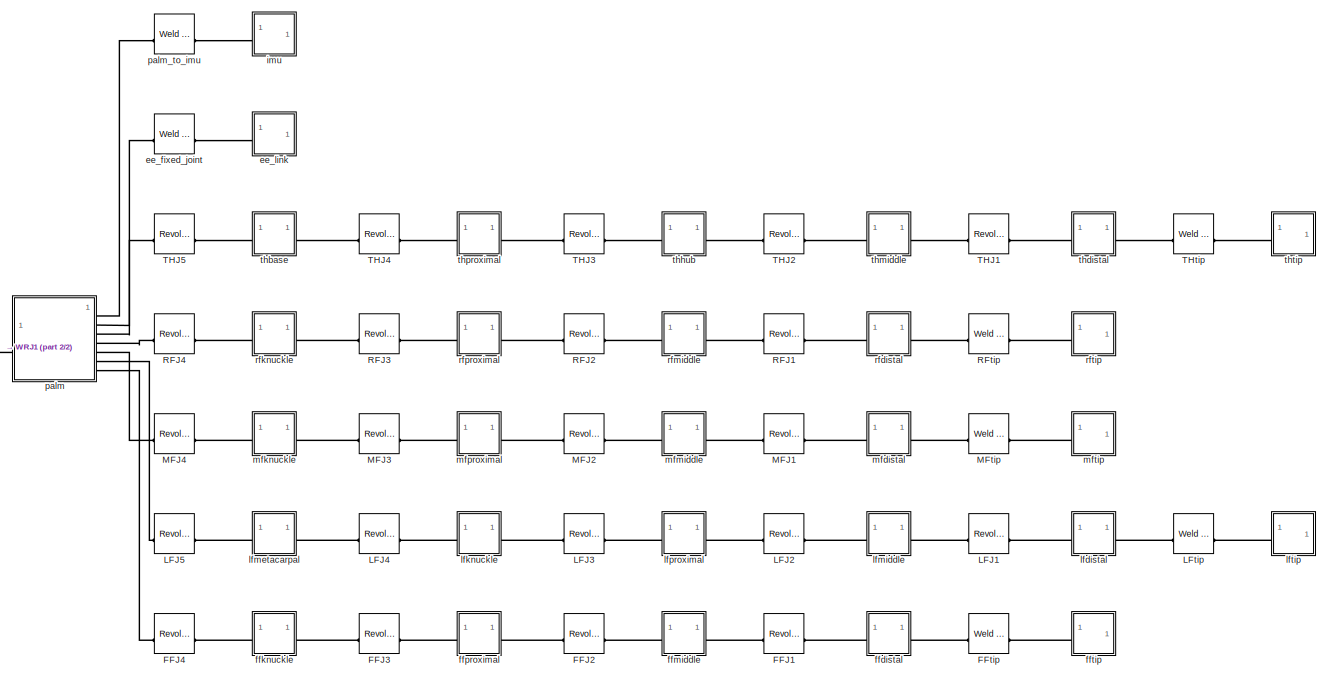
[diagram: root canvas - part 1/2, right side, full height]
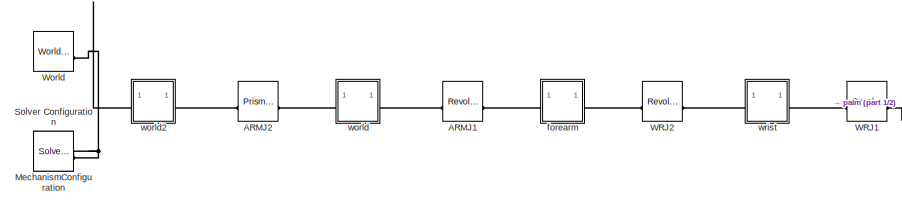
[diagram: root canvas - part 2/2, middle left region]
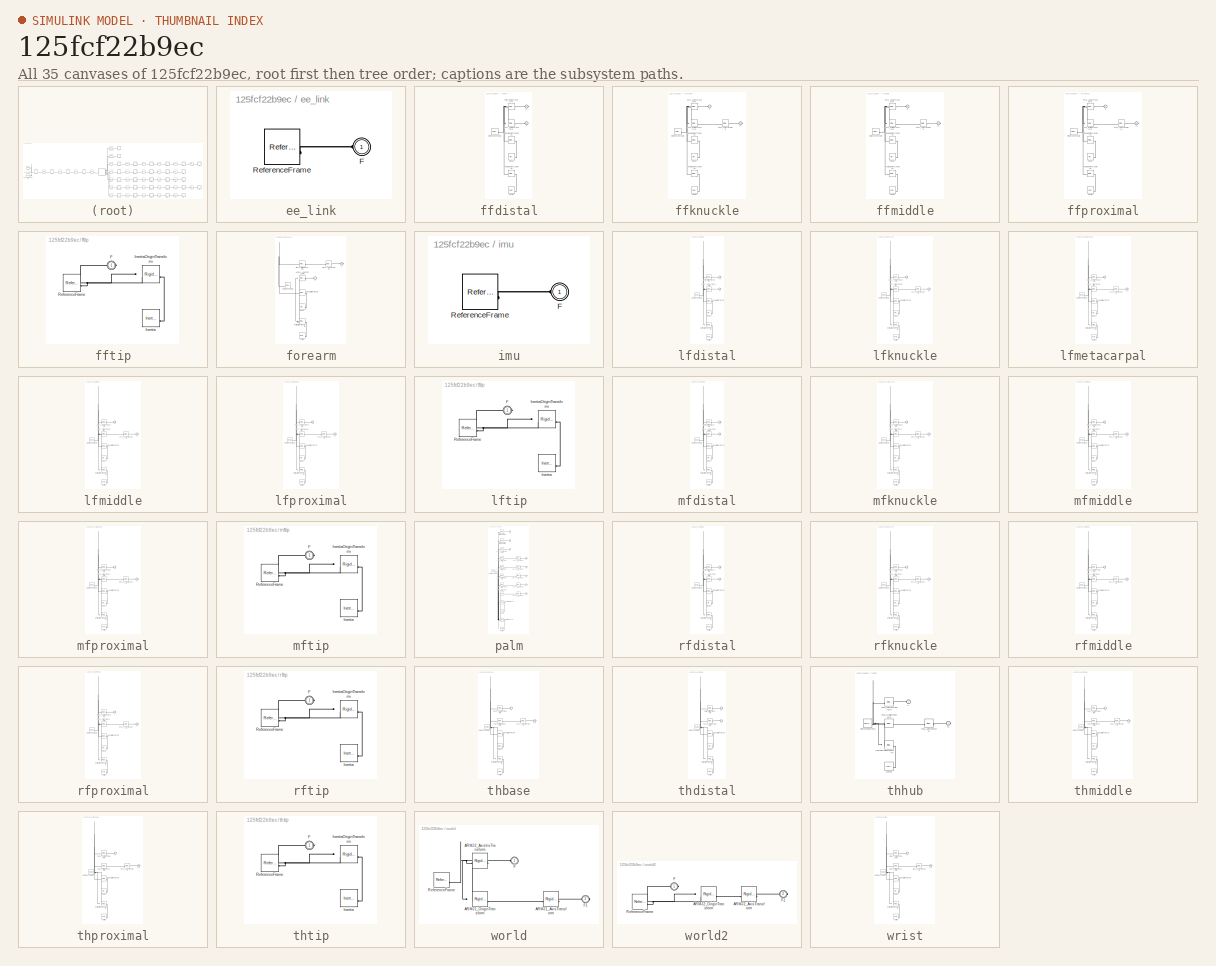
[diagram: thumbnail index - all 35 canvases of the model, root first then tree order]
MODEL slx_125fcf22b9ec
KIND model
CONFIG AbsTol = auto
CONFIG EnableMultiTasking = off
CONFIG FixedStep = auto
CONFIG MaxStep = auto
CONFIG MinStep = auto
CONFIG RelTol = 1e-3
CONFIG SampleTimeConstraint = Unconstrained
CONFIG SolverName = VariableStepAuto
CONFIG StartTime = 0.0
CONFIG StopTime = 10.0
BLOCK [Reference] ARMJ1  REF=sm_lib/Joints/Revolute Joint
  SourceBlock = sm_lib/Joints/Revolute Joint
  SourceType = Revolute Joint
BLOCK [Reference] ARMJ2  REF=sm_lib/Joints/Prismatic
Joint
  SourceBlock = sm_lib/Joints/Prismatic\nJoint
  SourceType = Prismatic\nJoint
BLOCK [Reference] FFJ1  REF=sm_lib/Joints/Revolute Joint
  SourceBlock = sm_lib/Joints/Revolute Joint
  SourceType = Revolute Joint
BLOCK [Reference] FFJ2  REF=sm_lib/Joints/Revolute Joint
  SourceBlock = sm_lib/Joints/Revolute Joint
  SourceType = Revolute Joint
BLOCK [Reference] FFJ3  REF=sm_lib/Joints/Revolute Joint
  SourceBlock = sm_lib/Joints/Revolute Joint
  SourceType = Revolute Joint
BLOCK [Reference] FFJ4  REF=sm_lib/Joints/Revolute Joint
  SourceBlock = sm_lib/Joints/Revolute Joint
  SourceType = Revolute Joint
BLOCK [Reference] FFtip  REF=sm_lib/Joints/Weld Joint
  SourceBlock = sm_lib/Joints/Weld Joint
  SourceType = Weld Joint
BLOCK [Reference] LFJ1  REF=sm_lib/Joints/Revolute Joint
  SourceBlock = sm_lib/Joints/Revolute Joint
  SourceType = Revolute Joint
BLOCK [Reference] LFJ2  REF=sm_lib/Joints/Revolute Joint
  SourceBlock = sm_lib/Joints/Revolute Joint
  SourceType = Revolute Joint
BLOCK [Reference] LFJ3  REF=sm_lib/Joints/Revolute Joint
  SourceBlock = sm_lib/Joints/Revolute Joint
  SourceType = Revolute Joint
BLOCK [Reference] LFJ4  REF=sm_lib/Joints/Revolute Joint
  SourceBlock = sm_lib/Joints/Revolute Joint
  SourceType = Revolute Joint
BLOCK [Reference] LFJ5  REF=sm_lib/Joints/Revolute Joint
  SourceBlock = sm_lib/Joints/Revolute Joint
  SourceType = Revolute Joint
BLOCK [Reference] LFtip  REF=sm_lib/Joints/Weld Joint
  SourceBlock = sm_lib/Joints/Weld Joint
  SourceType = Weld Joint
BLOCK [Reference] MFJ1  REF=sm_lib/Joints/Revolute Joint
  SourceBlock = sm_lib/Joints/Revolute Joint
  SourceType = Revolute Joint
BLOCK [Reference] MFJ2  REF=sm_lib/Joints/Revolute Joint
  SourceBlock = sm_lib/Joints/Revolute Joint
  SourceType = Revolute Joint
BLOCK [Reference] MFJ3  REF=sm_lib/Joints/Revolute Joint
  SourceBlock = sm_lib/Joints/Revolute Joint
  SourceType = Revolute Joint
BLOCK [Reference] MFJ4  REF=sm_lib/Joints/Revolute Joint
  SourceBlock = sm_lib/Joints/Revolute Joint
  SourceType = Revolute Joint
BLOCK [Reference] MFtip  REF=sm_lib/Joints/Weld Joint
  SourceBlock = sm_lib/Joints/Weld Joint
  SourceType = Weld Joint
BLOCK [Reference] MechanismConfiguration  REF=sm_lib/Utilities/Mechanism
Configuration
  SourceBlock = sm_lib/Utilities/Mechanism\nConfiguration
  SourceType = Mechanism\nConfiguration
BLOCK [Reference] RFJ1  REF=sm_lib/Joints/Revolute Joint
  SourceBlock = sm_lib/Joints/Revolute Joint
  SourceType = Revolute Joint
BLOCK [Reference] RFJ2  REF=sm_lib/Joints/Revolute Joint
  SourceBlock = sm_lib/Joints/Revolute Joint
  SourceType = Revolute Joint
BLOCK [Reference] RFJ3  REF=sm_lib/Joints/Revolute Joint
  SourceBlock = sm_lib/Joints/Revolute Joint
  SourceType = Revolute Joint
BLOCK [Reference] RFJ4  REF=sm_lib/Joints/Revolute Joint
  SourceBlock = sm_lib/Joints/Revolute Joint
  SourceType = Revolute Joint
BLOCK [Reference] RFtip  REF=sm_lib/Joints/Weld Joint
  SourceBlock = sm_lib/Joints/Weld Joint
  SourceType = Weld Joint
BLOCK [Reference] Solver Configuration  REF=nesl_utility/Solver
Configuration
  SourceBlock = nesl_utility/Solver\nConfiguration
  SourceType = Solver\nConfiguration
BLOCK [Reference] THJ1  REF=sm_lib/Joints/Revolute Joint
  SourceBlock = sm_lib/Joints/Revolute Joint
  SourceType = Revolute Joint
BLOCK [Reference] THJ2  REF=sm_lib/Joints/Revolute Joint
  SourceBlock = sm_lib/Joints/Revolute Joint
  SourceType = Revolute Joint
BLOCK [Reference] THJ3  REF=sm_lib/Joints/Revolute Joint
  SourceBlock = sm_lib/Joints/Revolute Joint
  SourceType = Revolute Joint
BLOCK [Reference] THJ4  REF=sm_lib/Joints/Revolute Joint
  SourceBlock = sm_lib/Joints/Revolute Joint
  SourceType = Revolute Joint
BLOCK [Reference] THJ5  REF=sm_lib/Joints/Revolute Joint
  SourceBlock = sm_lib/Joints/Revolute Joint
  SourceType = Revolute Joint
BLOCK [Reference] THtip  REF=sm_lib/Joints/Weld Joint
  SourceBlock = sm_lib/Joints/Weld Joint
  SourceType = Weld Joint
BLOCK [Reference] WRJ1  REF=sm_lib/Joints/Revolute Joint
  SourceBlock = sm_lib/Joints/Revolute Joint
  SourceType = Revolute Joint
BLOCK [Reference] WRJ2  REF=sm_lib/Joints/Revolute Joint
  SourceBlock = sm_lib/Joints/Revolute Joint
  SourceType = Revolute Joint
BLOCK [Reference] World  REF=sm_lib/Frames and
Transforms/World Frame
  SourceBlock = sm_lib/Frames and\nTransforms/World Frame
  SourceType = World Frame
BLOCK [Reference] ee_fixed_joint  REF=sm_lib/Joints/Weld Joint
  SourceBlock = sm_lib/Joints/Weld Joint
  SourceType = Weld Joint
BLOCK [SubSystem] ee_link
BLOCK [PMIOPort] ee_link/F
  Side = Left
BLOCK [Reference] ee_link/ReferenceFrame  REF=sm_lib/Frames and
Transforms/Reference
Frame
  SourceBlock = sm_lib/Frames and\nTransforms/Reference\nFrame
  SourceType = Reference\nFrame
BLOCK [SubSystem] ffdistal
BLOCK [PMIOPort] ffdistal/F
  Side = Left
BLOCK [PMIOPort] ffdistal/F1
  Port = 2
  Side = Right
BLOCK [Reference] ffdistal/FFJ1_AxisInvTransform  REF=sm_lib/Frames and
Transforms/Rigid
Transform
  SourceBlock = sm_lib/Frames and\nTransforms/Rigid\nTransform
  SourceType = Rigid\nTransform
BLOCK [Reference] ffdistal/FFtip_OriginTransform  REF=sm_lib/Frames and
Transforms/Rigid
Transform
  SourceBlock = sm_lib/Frames and\nTransforms/Rigid\nTransform
  SourceType = Rigid\nTransform
BLOCK [Reference] ffdistal/Inertia  REF=sm_lib/Body Elements/Inertia
  SourceBlock = sm_lib/Body Elements/Inertia
  SourceType = Inertia
BLOCK [Reference] ffdistal/InertiaOriginTransform  REF=sm_lib/Frames and
Transforms/Rigid
Transform
  SourceBlock = sm_lib/Frames and\nTransforms/Rigid\nTransform
  SourceType = Rigid\nTransform
BLOCK [Reference] ffdistal/ReferenceFrame  REF=sm_lib/Frames and
Transforms/Reference
Frame
  SourceBlock = sm_lib/Frames and\nTransforms/Reference\nFrame
  SourceType = Reference\nFrame
BLOCK [Reference] ffdistal/Visual  REF=sm_lib/Body Elements/File Solid
  SourceBlock = sm_lib/Body Elements/File Solid
  SourceType = File Solid
BLOCK [Reference] ffdistal/VisualOriginTransform  REF=sm_lib/Frames and
Transforms/Rigid
Transform
  SourceBlock = sm_lib/Frames and\nTransforms/Rigid\nTransform
  SourceType = Rigid\nTransform
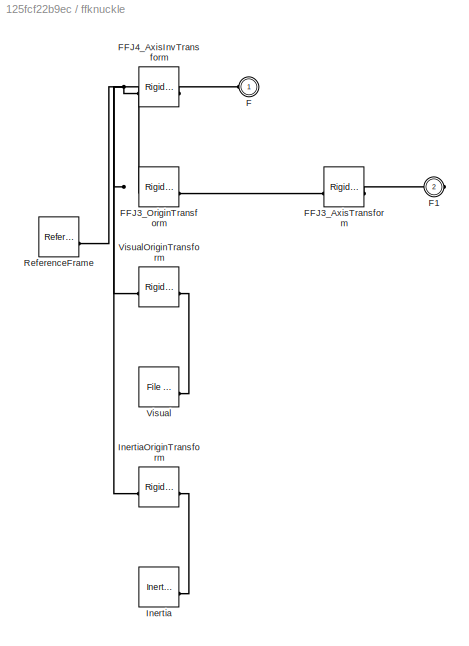
BLOCK [SubSystem] ffknuckle
BLOCK [PMIOPort] ffknuckle/F
  Side = Left
BLOCK [PMIOPort] ffknuckle/F1
  Port = 2
  Side = Right
BLOCK [Reference] ffknuckle/FFJ3_AxisTransform  REF=sm_lib/Frames and
Transforms/Rigid
Transform
  SourceBlock = sm_lib/Frames and\nTransforms/Rigid\nTransform
  SourceType = Rigid\nTransform
BLOCK [Reference] ffknuckle/FFJ3_OriginTransform  REF=sm_lib/Frames and
Transforms/Rigid
Transform
  SourceBlock = sm_lib/Frames and\nTransforms/Rigid\nTransform
  SourceType = Rigid\nTransform
BLOCK [Reference] ffknuckle/FFJ4_AxisInvTransform  REF=sm_lib/Frames and
Transforms/Rigid
Transform
  SourceBlock = sm_lib/Frames and\nTransforms/Rigid\nTransform
  SourceType = Rigid\nTransform
BLOCK [Reference] ffknuckle/Inertia  REF=sm_lib/Body Elements/Inertia
  SourceBlock = sm_lib/Body Elements/Inertia
  SourceType = Inertia
BLOCK [Reference] ffknuckle/InertiaOriginTransform  REF=sm_lib/Frames and
Transforms/Rigid
Transform
  SourceBlock = sm_lib/Frames and\nTransforms/Rigid\nTransform
  SourceType = Rigid\nTransform
BLOCK [Reference] ffknuckle/ReferenceFrame  REF=sm_lib/Frames and
Transforms/Reference
Frame
  SourceBlock = sm_lib/Frames and\nTransforms/Reference\nFrame
  SourceType = Reference\nFrame
BLOCK [Reference] ffknuckle/Visual  REF=sm_lib/Body Elements/File Solid
  SourceBlock = sm_lib/Body Elements/File Solid
  SourceType = File Solid
BLOCK [Reference] ffknuckle/VisualOriginTransform  REF=sm_lib/Frames and
Transforms/Rigid
Transform
  SourceBlock = sm_lib/Frames and\nTransforms/Rigid\nTransform
  SourceType = Rigid\nTransform
BLOCK [SubSystem] ffmiddle
BLOCK [PMIOPort] ffmiddle/F
  Side = Left
BLOCK [PMIOPort] ffmiddle/F1
  Port = 2
  Side = Right
BLOCK [Reference] ffmiddle/FFJ1_AxisTransform  REF=sm_lib/Frames and
Transforms/Rigid
Transform
  SourceBlock = sm_lib/Frames and\nTransforms/Rigid\nTransform
  SourceType = Rigid\nTransform
BLOCK [Reference] ffmiddle/FFJ1_OriginTransform  REF=sm_lib/Frames and
Transforms/Rigid
Transform
  SourceBlock = sm_lib/Frames and\nTransforms/Rigid\nTransform
  SourceType = Rigid\nTransform
BLOCK [Reference] ffmiddle/FFJ2_AxisInvTransform  REF=sm_lib/Frames and
Transforms/Rigid
Transform
  SourceBlock = sm_lib/Frames and\nTransforms/Rigid\nTransform
  SourceType = Rigid\nTransform
BLOCK [Reference] ffmiddle/Inertia  REF=sm_lib/Body Elements/Inertia
  SourceBlock = sm_lib/Body Elements/Inertia
  SourceType = Inertia
BLOCK [Reference] ffmiddle/InertiaOriginTransform  REF=sm_lib/Frames and
Transforms/Rigid
Transform
  SourceBlock = sm_lib/Frames and\nTransforms/Rigid\nTransform
  SourceType = Rigid\nTransform
BLOCK [Reference] ffmiddle/ReferenceFrame  REF=sm_lib/Frames and
Transforms/Reference
Frame
  SourceBlock = sm_lib/Frames and\nTransforms/Reference\nFrame
  SourceType = Reference\nFrame
BLOCK [Reference] ffmiddle/Visual  REF=sm_lib/Body Elements/File Solid
  SourceBlock = sm_lib/Body Elements/File Solid
  SourceType = File Solid
BLOCK [Reference] ffmiddle/VisualOriginTransform  REF=sm_lib/Frames and
Transforms/Rigid
Transform
  SourceBlock = sm_lib/Frames and\nTransforms/Rigid\nTransform
  SourceType = Rigid\nTransform
BLOCK [SubSystem] ffproximal
BLOCK [PMIOPort] ffproximal/F
  Side = Left
BLOCK [PMIOPort] ffproximal/F1
  Port = 2
  Side = Right
BLOCK [Reference] ffproximal/FFJ2_AxisTransform  REF=sm_lib/Frames and
Transforms/Rigid
Transform
  SourceBlock = sm_lib/Frames and\nTransforms/Rigid\nTransform
  SourceType = Rigid\nTransform
BLOCK [Reference] ffproximal/FFJ2_OriginTransform  REF=sm_lib/Frames and
Transforms/Rigid
Transform
  SourceBlock = sm_lib/Frames and\nTransforms/Rigid\nTransform
  SourceType = Rigid\nTransform
BLOCK [Reference] ffproximal/FFJ3_AxisInvTransform  REF=sm_lib/Frames and
Transforms/Rigid
Transform
  SourceBlock = sm_lib/Frames and\nTransforms/Rigid\nTransform
  SourceType = Rigid\nTransform
BLOCK [Reference] ffproximal/Inertia  REF=sm_lib/Body Elements/Inertia
  SourceBlock = sm_lib/Body Elements/Inertia
  SourceType = Inertia
BLOCK [Reference] ffproximal/InertiaOriginTransform  REF=sm_lib/Frames and
Transforms/Rigid
Transform
  SourceBlock = sm_lib/Frames and\nTransforms/Rigid\nTransform
  SourceType = Rigid\nTransform
BLOCK [Reference] ffproximal/ReferenceFrame  REF=sm_lib/Frames and
Transforms/Reference
Frame
  SourceBlock = sm_lib/Frames and\nTransforms/Reference\nFrame
  SourceType = Reference\nFrame
BLOCK [Reference] ffproximal/Visual  REF=sm_lib/Body Elements/File Solid
  SourceBlock = sm_lib/Body Elements/File Solid
  SourceType = File Solid
BLOCK [Reference] ffproximal/VisualOriginTransform  REF=sm_lib/Frames and
Transforms/Rigid
Transform
  SourceBlock = sm_lib/Frames and\nTransforms/Rigid\nTransform
  SourceType = Rigid\nTransform
BLOCK [SubSystem] fftip
BLOCK [PMIOPort] fftip/F
  Side = Left
BLOCK [Reference] fftip/Inertia  REF=sm_lib/Body Elements/Inertia
  SourceBlock = sm_lib/Body Elements/Inertia
  SourceType = Inertia
BLOCK [Reference] fftip/InertiaOriginTransform  REF=sm_lib/Frames and
Transforms/Rigid
Transform
  SourceBlock = sm_lib/Frames and\nTransforms/Rigid\nTransform
  SourceType = Rigid\nTransform
BLOCK [Reference] fftip/ReferenceFrame  REF=sm_lib/Frames and
Transforms/Reference
Frame
  SourceBlock = sm_lib/Frames and\nTransforms/Reference\nFrame
  SourceType = Reference\nFrame
BLOCK [SubSystem] forearm
BLOCK [Reference] forearm/ARMJ1_AxisInvTransform  REF=sm_lib/Frames and
Transforms/Rigid
Transform
  SourceBlock = sm_lib/Frames and\nTransforms/Rigid\nTransform
  SourceType = Rigid\nTransform
BLOCK [PMIOPort] forearm/F
  Side = Left
BLOCK [PMIOPort] forearm/F1
  Port = 2
  Side = Right
BLOCK [Reference] forearm/Inertia  REF=sm_lib/Body Elements/Inertia
  SourceBlock = sm_lib/Body Elements/Inertia
  SourceType = Inertia
BLOCK [Reference] forearm/InertiaOriginTransform  REF=sm_lib/Frames and
Transforms/Rigid
Transform
  SourceBlock = sm_lib/Frames and\nTransforms/Rigid\nTransform
  SourceType = Rigid\nTransform
BLOCK [Reference] forearm/ReferenceFrame  REF=sm_lib/Frames and
Transforms/Reference
Frame
  SourceBlock = sm_lib/Frames and\nTransforms/Reference\nFrame
  SourceType = Reference\nFrame
BLOCK [Reference] forearm/Visual  REF=sm_lib/Body Elements/File Solid
  SourceBlock = sm_lib/Body Elements/File Solid
  SourceType = File Solid
BLOCK [Reference] forearm/VisualOriginTransform  REF=sm_lib/Frames and
Transforms/Rigid
Transform
  SourceBlock = sm_lib/Frames and\nTransforms/Rigid\nTransform
  SourceType = Rigid\nTransform
BLOCK [Reference] forearm/WRJ2_AxisTransform  REF=sm_lib/Frames and
Transforms/Rigid
Transform
  SourceBlock = sm_lib/Frames and\nTransforms/Rigid\nTransform
  SourceType = Rigid\nTransform
BLOCK [Reference] forearm/WRJ2_OriginTransform  REF=sm_lib/Frames and
Transforms/Rigid
Transform
  SourceBlock = sm_lib/Frames and\nTransforms/Rigid\nTransform
  SourceType = Rigid\nTransform
BLOCK [SubSystem] imu
BLOCK [PMIOPort] imu/F
  Side = Left
BLOCK [Reference] imu/ReferenceFrame  REF=sm_lib/Frames and
Transforms/Reference
Frame
  SourceBlock = sm_lib/Frames and\nTransforms/Reference\nFrame
  SourceType = Reference\nFrame
BLOCK [SubSystem] lfdistal
BLOCK [PMIOPort] lfdistal/F
  Side = Left
BLOCK [PMIOPort] lfdistal/F1
  Port = 2
  Side = Right
BLOCK [Reference] lfdistal/Inertia  REF=sm_lib/Body Elements/Inertia
  SourceBlock = sm_lib/Body Elements/Inertia
  SourceType = Inertia
BLOCK [Reference] lfdistal/InertiaOriginTransform  REF=sm_lib/Frames and
Transforms/Rigid
Transform
  SourceBlock = sm_lib/Frames and\nTransforms/Rigid\nTransform
  SourceType = Rigid\nTransform
BLOCK [Reference] lfdistal/LFJ1_AxisInvTransform  REF=sm_lib/Frames and
Transforms/Rigid
Transform
  SourceBlock = sm_lib/Frames and\nTransforms/Rigid\nTransform
  SourceType = Rigid\nTransform
BLOCK [Reference] lfdistal/LFtip_OriginTransform  REF=sm_lib/Frames and
Transforms/Rigid
Transform
  SourceBlock = sm_lib/Frames and\nTransforms/Rigid\nTransform
  SourceType = Rigid\nTransform
BLOCK [Reference] lfdistal/ReferenceFrame  REF=sm_lib/Frames and
Transforms/Reference
Frame
  SourceBlock = sm_lib/Frames and\nTransforms/Reference\nFrame
  SourceType = Reference\nFrame
BLOCK [Reference] lfdistal/Visual  REF=sm_lib/Body Elements/File Solid
  SourceBlock = sm_lib/Body Elements/File Solid
  SourceType = File Solid
BLOCK [Reference] lfdistal/VisualOriginTransform  REF=sm_lib/Frames and
Transforms/Rigid
Transform
  SourceBlock = sm_lib/Frames and\nTransforms/Rigid\nTransform
  SourceType = Rigid\nTransform
BLOCK [SubSystem] lfknuckle
BLOCK [PMIOPort] lfknuckle/F
  Side = Left
BLOCK [PMIOPort] lfknuckle/F1
  Port = 2
  Side = Right
BLOCK [Reference] lfknuckle/Inertia  REF=sm_lib/Body Elements/Inertia
  SourceBlock = sm_lib/Body Elements/Inertia
  SourceType = Inertia
BLOCK [Reference] lfknuckle/InertiaOriginTransform  REF=sm_lib/Frames and
Transforms/Rigid
Transform
  SourceBlock = sm_lib/Frames and\nTransforms/Rigid\nTransform
  SourceType = Rigid\nTransform
BLOCK [Reference] lfknuckle/LFJ3_AxisTransform  REF=sm_lib/Frames and
Transforms/Rigid
Transform
  SourceBlock = sm_lib/Frames and\nTransforms/Rigid\nTransform
  SourceType = Rigid\nTransform
BLOCK [Reference] lfknuckle/LFJ3_OriginTransform  REF=sm_lib/Frames and
Transforms/Rigid
Transform
  SourceBlock = sm_lib/Frames and\nTransforms/Rigid\nTransform
  SourceType = Rigid\nTransform
BLOCK [Reference] lfknuckle/LFJ4_AxisInvTransform  REF=sm_lib/Frames and
Transforms/Rigid
Transform
  SourceBlock = sm_lib/Frames and\nTransforms/Rigid\nTransform
  SourceType = Rigid\nTransform
BLOCK [Reference] lfknuckle/ReferenceFrame  REF=sm_lib/Frames and
Transforms/Reference
Frame
  SourceBlock = sm_lib/Frames and\nTransforms/Reference\nFrame
  SourceType = Reference\nFrame
BLOCK [Reference] lfknuckle/Visual  REF=sm_lib/Body Elements/File Solid
  SourceBlock = sm_lib/Body Elements/File Solid
  SourceType = File Solid
BLOCK [Reference] lfknuckle/VisualOriginTransform  REF=sm_lib/Frames and
Transforms/Rigid
Transform
  SourceBlock = sm_lib/Frames and\nTransforms/Rigid\nTransform
  SourceType = Rigid\nTransform
BLOCK [SubSystem] lfmetacarpal
BLOCK [PMIOPort] lfmetacarpal/F
  Side = Left
BLOCK [PMIOPort] lfmetacarpal/F1
  Port = 2
  Side = Right
BLOCK [Reference] lfmetacarpal/Inertia  REF=sm_lib/Body Elements/Inertia
  SourceBlock = sm_lib/Body Elements/Inertia
  SourceType = Inertia
BLOCK [Reference] lfmetacarpal/InertiaOriginTransform  REF=sm_lib/Frames and
Transforms/Rigid
Transform
  SourceBlock = sm_lib/Frames and\nTransforms/Rigid\nTransform
  SourceType = Rigid\nTransform
BLOCK [Reference] lfmetacarpal/LFJ4_AxisTransform  REF=sm_lib/Frames and
Transforms/Rigid
Transform
  SourceBlock = sm_lib/Frames and\nTransforms/Rigid\nTransform
  SourceType = Rigid\nTransform
BLOCK [Reference] lfmetacarpal/LFJ4_OriginTransform  REF=sm_lib/Frames and
Transforms/Rigid
Transform
  SourceBlock = sm_lib/Frames and\nTransforms/Rigid\nTransform
  SourceType = Rigid\nTransform
BLOCK [Reference] lfmetacarpal/LFJ5_AxisInvTransform  REF=sm_lib/Frames and
Transforms/Rigid
Transform
  SourceBlock = sm_lib/Frames and\nTransforms/Rigid\nTransform
  SourceType = Rigid\nTransform
BLOCK [Reference] lfmetacarpal/ReferenceFrame  REF=sm_lib/Frames and
Transforms/Reference
Frame
  SourceBlock = sm_lib/Frames and\nTransforms/Reference\nFrame
  SourceType = Reference\nFrame
BLOCK [Reference] lfmetacarpal/Visual  REF=sm_lib/Body Elements/File Solid
  SourceBlock = sm_lib/Body Elements/File Solid
  SourceType = File Solid
BLOCK [Reference] lfmetacarpal/VisualOriginTransform  REF=sm_lib/Frames and
Transforms/Rigid
Transform
  SourceBlock = sm_lib/Frames and\nTransforms/Rigid\nTransform
  SourceType = Rigid\nTransform
BLOCK [SubSystem] lfmiddle
BLOCK [PMIOPort] lfmiddle/F
  Side = Left
BLOCK [PMIOPort] lfmiddle/F1
  Port = 2
  Side = Right
BLOCK [Reference] lfmiddle/Inertia  REF=sm_lib/Body Elements/Inertia
  SourceBlock = sm_lib/Body Elements/Inertia
  SourceType = Inertia
BLOCK [Reference] lfmiddle/InertiaOriginTransform  REF=sm_lib/Frames and
Transforms/Rigid
Transform
  SourceBlock = sm_lib/Frames and\nTransforms/Rigid\nTransform
  SourceType = Rigid\nTransform
BLOCK [Reference] lfmiddle/LFJ1_AxisTransform  REF=sm_lib/Frames and
Transforms/Rigid
Transform
  SourceBlock = sm_lib/Frames and\nTransforms/Rigid\nTransform
  SourceType = Rigid\nTransform
BLOCK [Reference] lfmiddle/LFJ1_OriginTransform  REF=sm_lib/Frames and
Transforms/Rigid
Transform
  SourceBlock = sm_lib/Frames and\nTransforms/Rigid\nTransform
  SourceType = Rigid\nTransform
BLOCK [Reference] lfmiddle/LFJ2_AxisInvTransform  REF=sm_lib/Frames and
Transforms/Rigid
Transform
  SourceBlock = sm_lib/Frames and\nTransforms/Rigid\nTransform
  SourceType = Rigid\nTransform
BLOCK [Reference] lfmiddle/ReferenceFrame  REF=sm_lib/Frames and
Transforms/Reference
Frame
  SourceBlock = sm_lib/Frames and\nTransforms/Reference\nFrame
  SourceType = Reference\nFrame
BLOCK [Reference] lfmiddle/Visual  REF=sm_lib/Body Elements/File Solid
  SourceBlock = sm_lib/Body Elements/File Solid
  SourceType = File Solid
BLOCK [Reference] lfmiddle/VisualOriginTransform  REF=sm_lib/Frames and
Transforms/Rigid
Transform
  SourceBlock = sm_lib/Frames and\nTransforms/Rigid\nTransform
  SourceType = Rigid\nTransform
BLOCK [SubSystem] lfproximal
BLOCK [PMIOPort] lfproximal/F
  Side = Left
BLOCK [PMIOPort] lfproximal/F1
  Port = 2
  Side = Right
BLOCK [Reference] lfproximal/Inertia  REF=sm_lib/Body Elements/Inertia
  SourceBlock = sm_lib/Body Elements/Inertia
  SourceType = Inertia
BLOCK [Reference] lfproximal/InertiaOriginTransform  REF=sm_lib/Frames and
Transforms/Rigid
Transform
  SourceBlock = sm_lib/Frames and\nTransforms/Rigid\nTransform
  SourceType = Rigid\nTransform
BLOCK [Reference] lfproximal/LFJ2_AxisTransform  REF=sm_lib/Frames and
Transforms/Rigid
Transform
  SourceBlock = sm_lib/Frames and\nTransforms/Rigid\nTransform
  SourceType = Rigid\nTransform
BLOCK [Reference] lfproximal/LFJ2_OriginTransform  REF=sm_lib/Frames and
Transforms/Rigid
Transform
  SourceBlock = sm_lib/Frames and\nTransforms/Rigid\nTransform
  SourceType = Rigid\nTransform
BLOCK [Reference] lfproximal/LFJ3_AxisInvTransform  REF=sm_lib/Frames and
Transforms/Rigid
Transform
  SourceBlock = sm_lib/Frames and\nTransforms/Rigid\nTransform
  SourceType = Rigid\nTransform
BLOCK [Reference] lfproximal/ReferenceFrame  REF=sm_lib/Frames and
Transforms/Reference
Frame
  SourceBlock = sm_lib/Frames and\nTransforms/Reference\nFrame
  SourceType = Reference\nFrame
BLOCK [Reference] lfproximal/Visual  REF=sm_lib/Body Elements/File Solid
  SourceBlock = sm_lib/Body Elements/File Solid
  SourceType = File Solid
BLOCK [Reference] lfproximal/VisualOriginTransform  REF=sm_lib/Frames and
Transforms/Rigid
Transform
  SourceBlock = sm_lib/Frames and\nTransforms/Rigid\nTransform
  SourceType = Rigid\nTransform
BLOCK [SubSystem] lftip
BLOCK [PMIOPort] lftip/F
  Side = Left
BLOCK [Reference] lftip/Inertia  REF=sm_lib/Body Elements/Inertia
  SourceBlock = sm_lib/Body Elements/Inertia
  SourceType = Inertia
BLOCK [Reference] lftip/InertiaOriginTransform  REF=sm_lib/Frames and
Transforms/Rigid
Transform
  SourceBlock = sm_lib/Frames and\nTransforms/Rigid\nTransform
  SourceType = Rigid\nTransform
BLOCK [Reference] lftip/ReferenceFrame  REF=sm_lib/Frames and
Transforms/Reference
Frame
  SourceBlock = sm_lib/Frames and\nTransforms/Reference\nFrame
  SourceType = Reference\nFrame
BLOCK [SubSystem] mfdistal
BLOCK [PMIOPort] mfdistal/F
  Side = Left
BLOCK [PMIOPort] mfdistal/F1
  Port = 2
  Side = Right
BLOCK [Reference] mfdistal/Inertia  REF=sm_lib/Body Elements/Inertia
  SourceBlock = sm_lib/Body Elements/Inertia
  SourceType = Inertia
BLOCK [Reference] mfdistal/InertiaOriginTransform  REF=sm_lib/Frames and
Transforms/Rigid
Transform
  SourceBlock = sm_lib/Frames and\nTransforms/Rigid\nTransform
  SourceType = Rigid\nTransform
BLOCK [Reference] mfdistal/MFJ1_AxisInvTransform  REF=sm_lib/Frames and
Transforms/Rigid
Transform
  SourceBlock = sm_lib/Frames and\nTransforms/Rigid\nTransform
  SourceType = Rigid\nTransform
BLOCK [Reference] mfdistal/MFtip_OriginTransform  REF=sm_lib/Frames and
Transforms/Rigid
Transform
  SourceBlock = sm_lib/Frames and\nTransforms/Rigid\nTransform
  SourceType = Rigid\nTransform
BLOCK [Reference] mfdistal/ReferenceFrame  REF=sm_lib/Frames and
Transforms/Reference
Frame
  SourceBlock = sm_lib/Frames and\nTransforms/Reference\nFrame
  SourceType = Reference\nFrame
BLOCK [Reference] mfdistal/Visual  REF=sm_lib/Body Elements/File Solid
  SourceBlock = sm_lib/Body Elements/File Solid
  SourceType = File Solid
BLOCK [Reference] mfdistal/VisualOriginTransform  REF=sm_lib/Frames and
Transforms/Rigid
Transform
  SourceBlock = sm_lib/Frames and\nTransforms/Rigid\nTransform
  SourceType = Rigid\nTransform
BLOCK [SubSystem] mfknuckle
BLOCK [PMIOPort] mfknuckle/F
  Side = Left
BLOCK [PMIOPort] mfknuckle/F1
  Port = 2
  Side = Right
BLOCK [Reference] mfknuckle/Inertia  REF=sm_lib/Body Elements/Inertia
  SourceBlock = sm_lib/Body Elements/Inertia
  SourceType = Inertia
BLOCK [Reference] mfknuckle/InertiaOriginTransform  REF=sm_lib/Frames and
Transforms/Rigid
Transform
  SourceBlock = sm_lib/Frames and\nTransforms/Rigid\nTransform
  SourceType = Rigid\nTransform
BLOCK [Reference] mfknuckle/MFJ3_AxisTransform  REF=sm_lib/Frames and
Transforms/Rigid
Transform
  SourceBlock = sm_lib/Frames and\nTransforms/Rigid\nTransform
  SourceType = Rigid\nTransform
BLOCK [Reference] mfknuckle/MFJ3_OriginTransform  REF=sm_lib/Frames and
Transforms/Rigid
Transform
  SourceBlock = sm_lib/Frames and\nTransforms/Rigid\nTransform
  SourceType = Rigid\nTransform
BLOCK [Reference] mfknuckle/MFJ4_AxisInvTransform  REF=sm_lib/Frames and
Transforms/Rigid
Transform
  SourceBlock = sm_lib/Frames and\nTransforms/Rigid\nTransform
  SourceType = Rigid\nTransform
BLOCK [Reference] mfknuckle/ReferenceFrame  REF=sm_lib/Frames and
Transforms/Reference
Frame
  SourceBlock = sm_lib/Frames and\nTransforms/Reference\nFrame
  SourceType = Reference\nFrame
BLOCK [Reference] mfknuckle/Visual  REF=sm_lib/Body Elements/File Solid
  SourceBlock = sm_lib/Body Elements/File Solid
  SourceType = File Solid
BLOCK [Reference] mfknuckle/VisualOriginTransform  REF=sm_lib/Frames and
Transforms/Rigid
Transform
  SourceBlock = sm_lib/Frames and\nTransforms/Rigid\nTransform
  SourceType = Rigid\nTransform
BLOCK [SubSystem] mfmiddle
BLOCK [PMIOPort] mfmiddle/F
  Side = Left
BLOCK [PMIOPort] mfmiddle/F1
  Port = 2
  Side = Right
BLOCK [Reference] mfmiddle/Inertia  REF=sm_lib/Body Elements/Inertia
  SourceBlock = sm_lib/Body Elements/Inertia
  SourceType = Inertia
BLOCK [Reference] mfmiddle/InertiaOriginTransform  REF=sm_lib/Frames and
Transforms/Rigid
Transform
  SourceBlock = sm_lib/Frames and\nTransforms/Rigid\nTransform
  SourceType = Rigid\nTransform
BLOCK [Reference] mfmiddle/MFJ1_AxisTransform  REF=sm_lib/Frames and
Transforms/Rigid
Transform
  SourceBlock = sm_lib/Frames and\nTransforms/Rigid\nTransform
  SourceType = Rigid\nTransform
BLOCK [Reference] mfmiddle/MFJ1_OriginTransform  REF=sm_lib/Frames and
Transforms/Rigid
Transform
  SourceBlock = sm_lib/Frames and\nTransforms/Rigid\nTransform
  SourceType = Rigid\nTransform
BLOCK [Reference] mfmiddle/MFJ2_AxisInvTransform  REF=sm_lib/Frames and
Transforms/Rigid
Transform
  SourceBlock = sm_lib/Frames and\nTransforms/Rigid\nTransform
  SourceType = Rigid\nTransform
BLOCK [Reference] mfmiddle/ReferenceFrame  REF=sm_lib/Frames and
Transforms/Reference
Frame
  SourceBlock = sm_lib/Frames and\nTransforms/Reference\nFrame
  SourceType = Reference\nFrame
BLOCK [Reference] mfmiddle/Visual  REF=sm_lib/Body Elements/File Solid
  SourceBlock = sm_lib/Body Elements/File Solid
  SourceType = File Solid
BLOCK [Reference] mfmiddle/VisualOriginTransform  REF=sm_lib/Frames and
Transforms/Rigid
Transform
  SourceBlock = sm_lib/Frames and\nTransforms/Rigid\nTransform
  SourceType = Rigid\nTransform
BLOCK [SubSystem] mfproximal
BLOCK [PMIOPort] mfproximal/F
  Side = Left
BLOCK [PMIOPort] mfproximal/F1
  Port = 2
  Side = Right
BLOCK [Reference] mfproximal/Inertia  REF=sm_lib/Body Elements/Inertia
  SourceBlock = sm_lib/Body Elements/Inertia
  SourceType = Inertia
BLOCK [Reference] mfproximal/InertiaOriginTransform  REF=sm_lib/Frames and
Transforms/Rigid
Transform
  SourceBlock = sm_lib/Frames and\nTransforms/Rigid\nTransform
  SourceType = Rigid\nTransform
BLOCK [Reference] mfproximal/MFJ2_AxisTransform  REF=sm_lib/Frames and
Transforms/Rigid
Transform
  SourceBlock = sm_lib/Frames and\nTransforms/Rigid\nTransform
  SourceType = Rigid\nTransform
BLOCK [Reference] mfproximal/MFJ2_OriginTransform  REF=sm_lib/Frames and
Transforms/Rigid
Transform
  SourceBlock = sm_lib/Frames and\nTransforms/Rigid\nTransform
  SourceType = Rigid\nTransform
BLOCK [Reference] mfproximal/MFJ3_AxisInvTransform  REF=sm_lib/Frames and
Transforms/Rigid
Transform
  SourceBlock = sm_lib/Frames and\nTransforms/Rigid\nTransform
  SourceType = Rigid\nTransform
BLOCK [Reference] mfproximal/ReferenceFrame  REF=sm_lib/Frames and
Transforms/Reference
Frame
  SourceBlock = sm_lib/Frames and\nTransforms/Reference\nFrame
  SourceType = Reference\nFrame
BLOCK [Reference] mfproximal/Visual  REF=sm_lib/Body Elements/File Solid
  SourceBlock = sm_lib/Body Elements/File Solid
  SourceType = File Solid
BLOCK [Reference] mfproximal/VisualOriginTransform  REF=sm_lib/Frames and
Transforms/Rigid
Transform
  SourceBlock = sm_lib/Frames and\nTransforms/Rigid\nTransform
  SourceType = Rigid\nTransform
BLOCK [SubSystem] mftip
BLOCK [PMIOPort] mftip/F
  Side = Left
BLOCK [Reference] mftip/Inertia  REF=sm_lib/Body Elements/Inertia
  SourceBlock = sm_lib/Body Elements/Inertia
  SourceType = Inertia
BLOCK [Reference] mftip/InertiaOriginTransform  REF=sm_lib/Frames and
Transforms/Rigid
Transform
  SourceBlock = sm_lib/Frames and\nTransforms/Rigid\nTransform
  SourceType = Rigid\nTransform
BLOCK [Reference] mftip/ReferenceFrame  REF=sm_lib/Frames and
Transforms/Reference
Frame
  SourceBlock = sm_lib/Frames and\nTransforms/Reference\nFrame
  SourceType = Reference\nFrame
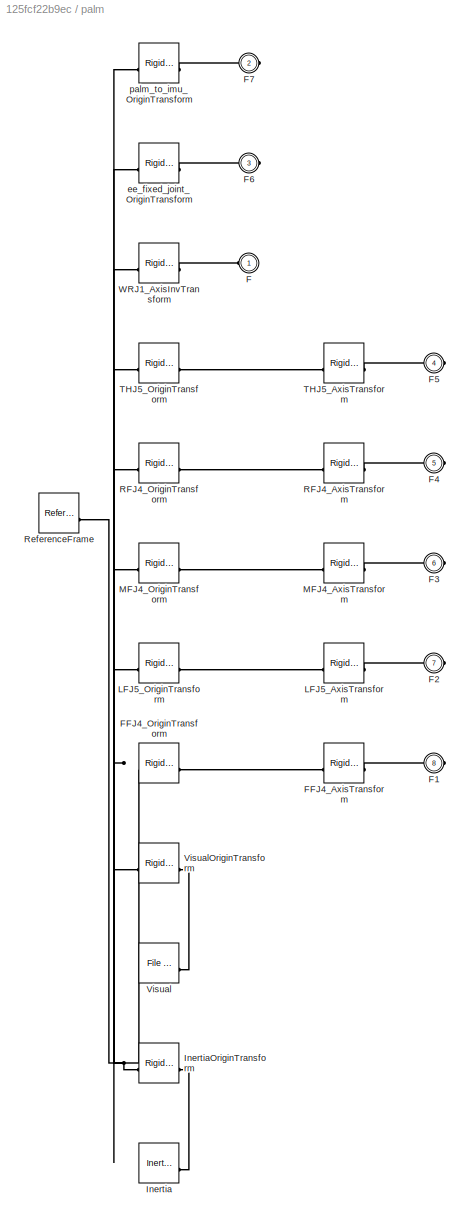
BLOCK [SubSystem] palm
BLOCK [PMIOPort] palm/F
  Side = Left
BLOCK [PMIOPort] palm/F1
  Port = 8
  Side = Right
BLOCK [PMIOPort] palm/F2
  Port = 7
  Side = Right
BLOCK [PMIOPort] palm/F3
  Port = 6
  Side = Right
BLOCK [PMIOPort] palm/F4
  Port = 5
  Side = Right
BLOCK [PMIOPort] palm/F5
  Port = 4
  Side = Right
BLOCK [PMIOPort] palm/F6
  Port = 3
  Side = Right
BLOCK [PMIOPort] palm/F7
  Port = 2
  Side = Right
BLOCK [Reference] palm/FFJ4_AxisTransform  REF=sm_lib/Frames and
Transforms/Rigid
Transform
  SourceBlock = sm_lib/Frames and\nTransforms/Rigid\nTransform
  SourceType = Rigid\nTransform
BLOCK [Reference] palm/FFJ4_OriginTransform  REF=sm_lib/Frames and
Transforms/Rigid
Transform
  SourceBlock = sm_lib/Frames and\nTransforms/Rigid\nTransform
  SourceType = Rigid\nTransform
BLOCK [Reference] palm/Inertia  REF=sm_lib/Body Elements/Inertia
  SourceBlock = sm_lib/Body Elements/Inertia
  SourceType = Inertia
BLOCK [Reference] palm/InertiaOriginTransform  REF=sm_lib/Frames and
Transforms/Rigid
Transform
  SourceBlock = sm_lib/Frames and\nTransforms/Rigid\nTransform
  SourceType = Rigid\nTransform
BLOCK [Reference] palm/LFJ5_AxisTransform  REF=sm_lib/Frames and
Transforms/Rigid
Transform
  SourceBlock = sm_lib/Frames and\nTransforms/Rigid\nTransform
  SourceType = Rigid\nTransform
BLOCK [Reference] palm/LFJ5_OriginTransform  REF=sm_lib/Frames and
Transforms/Rigid
Transform
  SourceBlock = sm_lib/Frames and\nTransforms/Rigid\nTransform
  SourceType = Rigid\nTransform
BLOCK [Reference] palm/MFJ4_AxisTransform  REF=sm_lib/Frames and
Transforms/Rigid
Transform
  SourceBlock = sm_lib/Frames and\nTransforms/Rigid\nTransform
  SourceType = Rigid\nTransform
BLOCK [Reference] palm/MFJ4_OriginTransform  REF=sm_lib/Frames and
Transforms/Rigid
Transform
  SourceBlock = sm_lib/Frames and\nTransforms/Rigid\nTransform
  SourceType = Rigid\nTransform
BLOCK [Reference] palm/RFJ4_AxisTransform  REF=sm_lib/Frames and
Transforms/Rigid
Transform
  SourceBlock = sm_lib/Frames and\nTransforms/Rigid\nTransform
  SourceType = Rigid\nTransform
BLOCK [Reference] palm/RFJ4_OriginTransform  REF=sm_lib/Frames and
Transforms/Rigid
Transform
  SourceBlock = sm_lib/Frames and\nTransforms/Rigid\nTransform
  SourceType = Rigid\nTransform
BLOCK [Reference] palm/ReferenceFrame  REF=sm_lib/Frames and
Transforms/Reference
Frame
  SourceBlock = sm_lib/Frames and\nTransforms/Reference\nFrame
  SourceType = Reference\nFrame
BLOCK [Reference] palm/THJ5_AxisTransform  REF=sm_lib/Frames and
Transforms/Rigid
Transform
  SourceBlock = sm_lib/Frames and\nTransforms/Rigid\nTransform
  SourceType = Rigid\nTransform
BLOCK [Reference] palm/THJ5_OriginTransform  REF=sm_lib/Frames and
Transforms/Rigid
Transform
  SourceBlock = sm_lib/Frames and\nTransforms/Rigid\nTransform
  SourceType = Rigid\nTransform
BLOCK [Reference] palm/Visual  REF=sm_lib/Body Elements/File Solid
  SourceBlock = sm_lib/Body Elements/File Solid
  SourceType = File Solid
BLOCK [Reference] palm/VisualOriginTransform  REF=sm_lib/Frames and
Transforms/Rigid
Transform
  SourceBlock = sm_lib/Frames and\nTransforms/Rigid\nTransform
  SourceType = Rigid\nTransform
BLOCK [Reference] palm/WRJ1_AxisInvTransform  REF=sm_lib/Frames and
Transforms/Rigid
Transform
  SourceBlock = sm_lib/Frames and\nTransforms/Rigid\nTransform
  SourceType = Rigid\nTransform
BLOCK [Reference] palm/ee_fixed_joint_OriginTransform  REF=sm_lib/Frames and
Transforms/Rigid
Transform
  SourceBlock = sm_lib/Frames and\nTransforms/Rigid\nTransform
  SourceType = Rigid\nTransform
BLOCK [Reference] palm/palm_to_imu_OriginTransform  REF=sm_lib/Frames and
Transforms/Rigid
Transform
  SourceBlock = sm_lib/Frames and\nTransforms/Rigid\nTransform
  SourceType = Rigid\nTransform
BLOCK [Reference] palm_to_imu  REF=sm_lib/Joints/Weld Joint
  SourceBlock = sm_lib/Joints/Weld Joint
  SourceType = Weld Joint
BLOCK [SubSystem] rfdistal
BLOCK [PMIOPort] rfdistal/F
  Side = Left
BLOCK [PMIOPort] rfdistal/F1
  Port = 2
  Side = Right
BLOCK [Reference] rfdistal/Inertia  REF=sm_lib/Body Elements/Inertia
  SourceBlock = sm_lib/Body Elements/Inertia
  SourceType = Inertia
BLOCK [Reference] rfdistal/InertiaOriginTransform  REF=sm_lib/Frames and
Transforms/Rigid
Transform
  SourceBlock = sm_lib/Frames and\nTransforms/Rigid\nTransform
  SourceType = Rigid\nTransform
BLOCK [Reference] rfdistal/RFJ1_AxisInvTransform  REF=sm_lib/Frames and
Transforms/Rigid
Transform
  SourceBlock = sm_lib/Frames and\nTransforms/Rigid\nTransform
  SourceType = Rigid\nTransform
BLOCK [Reference] rfdistal/RFtip_OriginTransform  REF=sm_lib/Frames and
Transforms/Rigid
Transform
  SourceBlock = sm_lib/Frames and\nTransforms/Rigid\nTransform
  SourceType = Rigid\nTransform
BLOCK [Reference] rfdistal/ReferenceFrame  REF=sm_lib/Frames and
Transforms/Reference
Frame
  SourceBlock = sm_lib/Frames and\nTransforms/Reference\nFrame
  SourceType = Reference\nFrame
BLOCK [Reference] rfdistal/Visual  REF=sm_lib/Body Elements/File Solid
  SourceBlock = sm_lib/Body Elements/File Solid
  SourceType = File Solid
BLOCK [Reference] rfdistal/VisualOriginTransform  REF=sm_lib/Frames and
Transforms/Rigid
Transform
  SourceBlock = sm_lib/Frames and\nTransforms/Rigid\nTransform
  SourceType = Rigid\nTransform
BLOCK [SubSystem] rfknuckle
BLOCK [PMIOPort] rfknuckle/F
  Side = Left
BLOCK [PMIOPort] rfknuckle/F1
  Port = 2
  Side = Right
BLOCK [Reference] rfknuckle/Inertia  REF=sm_lib/Body Elements/Inertia
  SourceBlock = sm_lib/Body Elements/Inertia
  SourceType = Inertia
BLOCK [Reference] rfknuckle/InertiaOriginTransform  REF=sm_lib/Frames and
Transforms/Rigid
Transform
  SourceBlock = sm_lib/Frames and\nTransforms/Rigid\nTransform
  SourceType = Rigid\nTransform
BLOCK [Reference] rfknuckle/RFJ3_AxisTransform  REF=sm_lib/Frames and
Transforms/Rigid
Transform
  SourceBlock = sm_lib/Frames and\nTransforms/Rigid\nTransform
  SourceType = Rigid\nTransform
BLOCK [Reference] rfknuckle/RFJ3_OriginTransform  REF=sm_lib/Frames and
Transforms/Rigid
Transform
  SourceBlock = sm_lib/Frames and\nTransforms/Rigid\nTransform
  SourceType = Rigid\nTransform
BLOCK [Reference] rfknuckle/RFJ4_AxisInvTransform  REF=sm_lib/Frames and
Transforms/Rigid
Transform
  SourceBlock = sm_lib/Frames and\nTransforms/Rigid\nTransform
  SourceType = Rigid\nTransform
BLOCK [Reference] rfknuckle/ReferenceFrame  REF=sm_lib/Frames and
Transforms/Reference
Frame
  SourceBlock = sm_lib/Frames and\nTransforms/Reference\nFrame
  SourceType = Reference\nFrame
BLOCK [Reference] rfknuckle/Visual  REF=sm_lib/Body Elements/File Solid
  SourceBlock = sm_lib/Body Elements/File Solid
  SourceType = File Solid
BLOCK [Reference] rfknuckle/VisualOriginTransform  REF=sm_lib/Frames and
Transforms/Rigid
Transform
  SourceBlock = sm_lib/Frames and\nTransforms/Rigid\nTransform
  SourceType = Rigid\nTransform
BLOCK [SubSystem] rfmiddle
BLOCK [PMIOPort] rfmiddle/F
  Side = Left
BLOCK [PMIOPort] rfmiddle/F1
  Port = 2
  Side = Right
BLOCK [Reference] rfmiddle/Inertia  REF=sm_lib/Body Elements/Inertia
  SourceBlock = sm_lib/Body Elements/Inertia
  SourceType = Inertia
BLOCK [Reference] rfmiddle/InertiaOriginTransform  REF=sm_lib/Frames and
Transforms/Rigid
Transform
  SourceBlock = sm_lib/Frames and\nTransforms/Rigid\nTransform
  SourceType = Rigid\nTransform
BLOCK [Reference] rfmiddle/RFJ1_AxisTransform  REF=sm_lib/Frames and
Transforms/Rigid
Transform
  SourceBlock = sm_lib/Frames and\nTransforms/Rigid\nTransform
  SourceType = Rigid\nTransform
BLOCK [Reference] rfmiddle/RFJ1_OriginTransform  REF=sm_lib/Frames and
Transforms/Rigid
Transform
  SourceBlock = sm_lib/Frames and\nTransforms/Rigid\nTransform
  SourceType = Rigid\nTransform
BLOCK [Reference] rfmiddle/RFJ2_AxisInvTransform  REF=sm_lib/Frames and
Transforms/Rigid
Transform
  SourceBlock = sm_lib/Frames and\nTransforms/Rigid\nTransform
  SourceType = Rigid\nTransform
BLOCK [Reference] rfmiddle/ReferenceFrame  REF=sm_lib/Frames and
Transforms/Reference
Frame
  SourceBlock = sm_lib/Frames and\nTransforms/Reference\nFrame
  SourceType = Reference\nFrame
BLOCK [Reference] rfmiddle/Visual  REF=sm_lib/Body Elements/File Solid
  SourceBlock = sm_lib/Body Elements/File Solid
  SourceType = File Solid
BLOCK [Reference] rfmiddle/VisualOriginTransform  REF=sm_lib/Frames and
Transforms/Rigid
Transform
  SourceBlock = sm_lib/Frames and\nTransforms/Rigid\nTransform
  SourceType = Rigid\nTransform
BLOCK [SubSystem] rfproximal
BLOCK [PMIOPort] rfproximal/F
  Side = Left
BLOCK [PMIOPort] rfproximal/F1
  Port = 2
  Side = Right
BLOCK [Reference] rfproximal/Inertia  REF=sm_lib/Body Elements/Inertia
  SourceBlock = sm_lib/Body Elements/Inertia
  SourceType = Inertia
BLOCK [Reference] rfproximal/InertiaOriginTransform  REF=sm_lib/Frames and
Transforms/Rigid
Transform
  SourceBlock = sm_lib/Frames and\nTransforms/Rigid\nTransform
  SourceType = Rigid\nTransform
BLOCK [Reference] rfproximal/RFJ2_AxisTransform  REF=sm_lib/Frames and
Transforms/Rigid
Transform
  SourceBlock = sm_lib/Frames and\nTransforms/Rigid\nTransform
  SourceType = Rigid\nTransform
BLOCK [Reference] rfproximal/RFJ2_OriginTransform  REF=sm_lib/Frames and
Transforms/Rigid
Transform
  SourceBlock = sm_lib/Frames and\nTransforms/Rigid\nTransform
  SourceType = Rigid\nTransform
BLOCK [Reference] rfproximal/RFJ3_AxisInvTransform  REF=sm_lib/Frames and
Transforms/Rigid
Transform
  SourceBlock = sm_lib/Frames and\nTransforms/Rigid\nTransform
  SourceType = Rigid\nTransform
BLOCK [Reference] rfproximal/ReferenceFrame  REF=sm_lib/Frames and
Transforms/Reference
Frame
  SourceBlock = sm_lib/Frames and\nTransforms/Reference\nFrame
  SourceType = Reference\nFrame
BLOCK [Reference] rfproximal/Visual  REF=sm_lib/Body Elements/File Solid
  SourceBlock = sm_lib/Body Elements/File Solid
  SourceType = File Solid
BLOCK [Reference] rfproximal/VisualOriginTransform  REF=sm_lib/Frames and
Transforms/Rigid
Transform
  SourceBlock = sm_lib/Frames and\nTransforms/Rigid\nTransform
  SourceType = Rigid\nTransform
BLOCK [SubSystem] rftip
BLOCK [PMIOPort] rftip/F
  Side = Left
BLOCK [Reference] rftip/Inertia  REF=sm_lib/Body Elements/Inertia
  SourceBlock = sm_lib/Body Elements/Inertia
  SourceType = Inertia
BLOCK [Reference] rftip/InertiaOriginTransform  REF=sm_lib/Frames and
Transforms/Rigid
Transform
  SourceBlock = sm_lib/Frames and\nTransforms/Rigid\nTransform
  SourceType = Rigid\nTransform
BLOCK [Reference] rftip/ReferenceFrame  REF=sm_lib/Frames and
Transforms/Reference
Frame
  SourceBlock = sm_lib/Frames and\nTransforms/Reference\nFrame
  SourceType = Reference\nFrame
BLOCK [SubSystem] thbase
BLOCK [PMIOPort] thbase/F
  Side = Left
BLOCK [PMIOPort] thbase/F1
  Port = 2
  Side = Right
BLOCK [Reference] thbase/Inertia  REF=sm_lib/Body Elements/Inertia
  SourceBlock = sm_lib/Body Elements/Inertia
  SourceType = Inertia
BLOCK [Reference] thbase/InertiaOriginTransform  REF=sm_lib/Frames and
Transforms/Rigid
Transform
  SourceBlock = sm_lib/Frames and\nTransforms/Rigid\nTransform
  SourceType = Rigid\nTransform
BLOCK [Reference] thbase/ReferenceFrame  REF=sm_lib/Frames and
Transforms/Reference
Frame
  SourceBlock = sm_lib/Frames and\nTransforms/Reference\nFrame
  SourceType = Reference\nFrame
BLOCK [Reference] thbase/THJ4_AxisTransform  REF=sm_lib/Frames and
Transforms/Rigid
Transform
  SourceBlock = sm_lib/Frames and\nTransforms/Rigid\nTransform
  SourceType = Rigid\nTransform
BLOCK [Reference] thbase/THJ4_OriginTransform  REF=sm_lib/Frames and
Transforms/Rigid
Transform
  SourceBlock = sm_lib/Frames and\nTransforms/Rigid\nTransform
  SourceType = Rigid\nTransform
BLOCK [Reference] thbase/THJ5_AxisInvTransform  REF=sm_lib/Frames and
Transforms/Rigid
Transform
  SourceBlock = sm_lib/Frames and\nTransforms/Rigid\nTransform
  SourceType = Rigid\nTransform
BLOCK [Reference] thbase/Visual  REF=sm_lib/Body Elements/Brick Solid
  SourceBlock = sm_lib/Body Elements/Brick Solid
  SourceType = Brick Solid
BLOCK [Reference] thbase/VisualOriginTransform  REF=sm_lib/Frames and
Transforms/Rigid
Transform
  SourceBlock = sm_lib/Frames and\nTransforms/Rigid\nTransform
  SourceType = Rigid\nTransform
BLOCK [SubSystem] thdistal
BLOCK [PMIOPort] thdistal/F
  Side = Left
BLOCK [PMIOPort] thdistal/F1
  Port = 2
  Side = Right
BLOCK [Reference] thdistal/Inertia  REF=sm_lib/Body Elements/Inertia
  SourceBlock = sm_lib/Body Elements/Inertia
  SourceType = Inertia
BLOCK [Reference] thdistal/InertiaOriginTransform  REF=sm_lib/Frames and
Transforms/Rigid
Transform
  SourceBlock = sm_lib/Frames and\nTransforms/Rigid\nTransform
  SourceType = Rigid\nTransform
BLOCK [Reference] thdistal/ReferenceFrame  REF=sm_lib/Frames and
Transforms/Reference
Frame
  SourceBlock = sm_lib/Frames and\nTransforms/Reference\nFrame
  SourceType = Reference\nFrame
BLOCK [Reference] thdistal/THJ1_AxisInvTransform  REF=sm_lib/Frames and
Transforms/Rigid
Transform
  SourceBlock = sm_lib/Frames and\nTransforms/Rigid\nTransform
  SourceType = Rigid\nTransform
BLOCK [Reference] thdistal/THtip_OriginTransform  REF=sm_lib/Frames and
Transforms/Rigid
Transform
  SourceBlock = sm_lib/Frames and\nTransforms/Rigid\nTransform
  SourceType = Rigid\nTransform
BLOCK [Reference] thdistal/Visual  REF=sm_lib/Body Elements/File Solid
  SourceBlock = sm_lib/Body Elements/File Solid
  SourceType = File Solid
BLOCK [Reference] thdistal/VisualOriginTransform  REF=sm_lib/Frames and
Transforms/Rigid
Transform
  SourceBlock = sm_lib/Frames and\nTransforms/Rigid\nTransform
  SourceType = Rigid\nTransform
BLOCK [SubSystem] thhub
BLOCK [PMIOPort] thhub/F
  Side = Left
BLOCK [PMIOPort] thhub/F1
  Port = 2
  Side = Right
BLOCK [Reference] thhub/Inertia  REF=sm_lib/Body Elements/Inertia
  SourceBlock = sm_lib/Body Elements/Inertia
  SourceType = Inertia
BLOCK [Reference] thhub/InertiaOriginTransform  REF=sm_lib/Frames and
Transforms/Rigid
Transform
  SourceBlock = sm_lib/Frames and\nTransforms/Rigid\nTransform
  SourceType = Rigid\nTransform
BLOCK [Reference] thhub/ReferenceFrame  REF=sm_lib/Frames and
Transforms/Reference
Frame
  SourceBlock = sm_lib/Frames and\nTransforms/Reference\nFrame
  SourceType = Reference\nFrame
BLOCK [Reference] thhub/THJ2_AxisTransform  REF=sm_lib/Frames and
Transforms/Rigid
Transform
  SourceBlock = sm_lib/Frames and\nTransforms/Rigid\nTransform
  SourceType = Rigid\nTransform
BLOCK [Reference] thhub/THJ2_OriginTransform  REF=sm_lib/Frames and
Transforms/Rigid
Transform
  SourceBlock = sm_lib/Frames and\nTransforms/Rigid\nTransform
  SourceType = Rigid\nTransform
BLOCK [Reference] thhub/THJ3_AxisInvTransform  REF=sm_lib/Frames and
Transforms/Rigid
Transform
  SourceBlock = sm_lib/Frames and\nTransforms/Rigid\nTransform
  SourceType = Rigid\nTransform
BLOCK [SubSystem] thmiddle
BLOCK [PMIOPort] thmiddle/F
  Side = Left
BLOCK [PMIOPort] thmiddle/F1
  Port = 2
  Side = Right
BLOCK [Reference] thmiddle/Inertia  REF=sm_lib/Body Elements/Inertia
  SourceBlock = sm_lib/Body Elements/Inertia
  SourceType = Inertia
BLOCK [Reference] thmiddle/InertiaOriginTransform  REF=sm_lib/Frames and
Transforms/Rigid
Transform
  SourceBlock = sm_lib/Frames and\nTransforms/Rigid\nTransform
  SourceType = Rigid\nTransform
BLOCK [Reference] thmiddle/ReferenceFrame  REF=sm_lib/Frames and
Transforms/Reference
Frame
  SourceBlock = sm_lib/Frames and\nTransforms/Reference\nFrame
  SourceType = Reference\nFrame
BLOCK [Reference] thmiddle/THJ1_AxisTransform  REF=sm_lib/Frames and
Transforms/Rigid
Transform
  SourceBlock = sm_lib/Frames and\nTransforms/Rigid\nTransform
  SourceType = Rigid\nTransform
BLOCK [Reference] thmiddle/THJ1_OriginTransform  REF=sm_lib/Frames and
Transforms/Rigid
Transform
  SourceBlock = sm_lib/Frames and\nTransforms/Rigid\nTransform
  SourceType = Rigid\nTransform
BLOCK [Reference] thmiddle/THJ2_AxisInvTransform  REF=sm_lib/Frames and
Transforms/Rigid
Transform
  SourceBlock = sm_lib/Frames and\nTransforms/Rigid\nTransform
  SourceType = Rigid\nTransform
BLOCK [Reference] thmiddle/Visual  REF=sm_lib/Body Elements/File Solid
  SourceBlock = sm_lib/Body Elements/File Solid
  SourceType = File Solid
BLOCK [Reference] thmiddle/VisualOriginTransform  REF=sm_lib/Frames and
Transforms/Rigid
Transform
  SourceBlock = sm_lib/Frames and\nTransforms/Rigid\nTransform
  SourceType = Rigid\nTransform
BLOCK [SubSystem] thproximal
BLOCK [PMIOPort] thproximal/F
  Side = Left
BLOCK [PMIOPort] thproximal/F1
  Port = 2
  Side = Right
BLOCK [Reference] thproximal/Inertia  REF=sm_lib/Body Elements/Inertia
  SourceBlock = sm_lib/Body Elements/Inertia
  SourceType = Inertia
BLOCK [Reference] thproximal/InertiaOriginTransform  REF=sm_lib/Frames and
Transforms/Rigid
Transform
  SourceBlock = sm_lib/Frames and\nTransforms/Rigid\nTransform
  SourceType = Rigid\nTransform
BLOCK [Reference] thproximal/ReferenceFrame  REF=sm_lib/Frames and
Transforms/Reference
Frame
  SourceBlock = sm_lib/Frames and\nTransforms/Reference\nFrame
  SourceType = Reference\nFrame
BLOCK [Reference] thproximal/THJ3_AxisTransform  REF=sm_lib/Frames and
Transforms/Rigid
Transform
  SourceBlock = sm_lib/Frames and\nTransforms/Rigid\nTransform
  SourceType = Rigid\nTransform
BLOCK [Reference] thproximal/THJ3_OriginTransform  REF=sm_lib/Frames and
Transforms/Rigid
Transform
  SourceBlock = sm_lib/Frames and\nTransforms/Rigid\nTransform
  SourceType = Rigid\nTransform
BLOCK [Reference] thproximal/THJ4_AxisInvTransform  REF=sm_lib/Frames and
Transforms/Rigid
Transform
  SourceBlock = sm_lib/Frames and\nTransforms/Rigid\nTransform
  SourceType = Rigid\nTransform
BLOCK [Reference] thproximal/Visual  REF=sm_lib/Body Elements/File Solid
  SourceBlock = sm_lib/Body Elements/File Solid
  SourceType = File Solid
BLOCK [Reference] thproximal/VisualOriginTransform  REF=sm_lib/Frames and
Transforms/Rigid
Transform
  SourceBlock = sm_lib/Frames and\nTransforms/Rigid\nTransform
  SourceType = Rigid\nTransform
BLOCK [SubSystem] thtip
BLOCK [PMIOPort] thtip/F
  Side = Left
BLOCK [Reference] thtip/Inertia  REF=sm_lib/Body Elements/Inertia
  SourceBlock = sm_lib/Body Elements/Inertia
  SourceType = Inertia
BLOCK [Reference] thtip/InertiaOriginTransform  REF=sm_lib/Frames and
Transforms/Rigid
Transform
  SourceBlock = sm_lib/Frames and\nTransforms/Rigid\nTransform
  SourceType = Rigid\nTransform
BLOCK [Reference] thtip/ReferenceFrame  REF=sm_lib/Frames and
Transforms/Reference
Frame
  SourceBlock = sm_lib/Frames and\nTransforms/Reference\nFrame
  SourceType = Reference\nFrame
BLOCK [SubSystem] world
BLOCK [Reference] world/ARMJ1_AxisTransform  REF=sm_lib/Frames and
Transforms/Rigid
Transform
  SourceBlock = sm_lib/Frames and\nTransforms/Rigid\nTransform
  SourceType = Rigid\nTransform
BLOCK [Reference] world/ARMJ1_OriginTransform  REF=sm_lib/Frames and
Transforms/Rigid
Transform
  SourceBlock = sm_lib/Frames and\nTransforms/Rigid\nTransform
  SourceType = Rigid\nTransform
BLOCK [Reference] world/ARMJ2_AxisInvTransform  REF=sm_lib/Frames and
Transforms/Rigid
Transform
  SourceBlock = sm_lib/Frames and\nTransforms/Rigid\nTransform
  SourceType = Rigid\nTransform
BLOCK [PMIOPort] world/F
  Side = Left
BLOCK [PMIOPort] world/F1
  Port = 2
  Side = Right
BLOCK [Reference] world/ReferenceFrame  REF=sm_lib/Frames and
Transforms/Reference
Frame
  SourceBlock = sm_lib/Frames and\nTransforms/Reference\nFrame
  SourceType = Reference\nFrame
BLOCK [SubSystem] world2
BLOCK [Reference] world2/ARMJ2_AxisTransform  REF=sm_lib/Frames and
Transforms/Rigid
Transform
  SourceBlock = sm_lib/Frames and\nTransforms/Rigid\nTransform
  SourceType = Rigid\nTransform
BLOCK [Reference] world2/ARMJ2_OriginTransform  REF=sm_lib/Frames and
Transforms/Rigid
Transform
  SourceBlock = sm_lib/Frames and\nTransforms/Rigid\nTransform
  SourceType = Rigid\nTransform
BLOCK [PMIOPort] world2/F
  Side = Left
BLOCK [PMIOPort] world2/F1
  Port = 2
  Side = Right
BLOCK [Reference] world2/ReferenceFrame  REF=sm_lib/Frames and
Transforms/Reference
Frame
  SourceBlock = sm_lib/Frames and\nTransforms/Reference\nFrame
  SourceType = Reference\nFrame
BLOCK [SubSystem] wrist
BLOCK [PMIOPort] wrist/F
  Side = Left
BLOCK [PMIOPort] wrist/F1
  Port = 2
  Side = Right
BLOCK [Reference] wrist/Inertia  REF=sm_lib/Body Elements/Inertia
  SourceBlock = sm_lib/Body Elements/Inertia
  SourceType = Inertia
BLOCK [Reference] wrist/InertiaOriginTransform  REF=sm_lib/Frames and
Transforms/Rigid
Transform
  SourceBlock = sm_lib/Frames and\nTransforms/Rigid\nTransform
  SourceType = Rigid\nTransform
BLOCK [Reference] wrist/ReferenceFrame  REF=sm_lib/Frames and
Transforms/Reference
Frame
  SourceBlock = sm_lib/Frames and\nTransforms/Reference\nFrame
  SourceType = Reference\nFrame
BLOCK [Reference] wrist/Visual  REF=sm_lib/Body Elements/File Solid
  SourceBlock = sm_lib/Body Elements/File Solid
  SourceType = File Solid
BLOCK [Reference] wrist/VisualOriginTransform  REF=sm_lib/Frames and
Transforms/Rigid
Transform
  SourceBlock = sm_lib/Frames and\nTransforms/Rigid\nTransform
  SourceType = Rigid\nTransform
BLOCK [Reference] wrist/WRJ1_AxisTransform  REF=sm_lib/Frames and
Transforms/Rigid
Transform
  SourceBlock = sm_lib/Frames and\nTransforms/Rigid\nTransform
  SourceType = Rigid\nTransform
BLOCK [Reference] wrist/WRJ1_OriginTransform  REF=sm_lib/Frames and
Transforms/Rigid
Transform
  SourceBlock = sm_lib/Frames and\nTransforms/Rigid\nTransform
  SourceType = Rigid\nTransform
BLOCK [Reference] wrist/WRJ2_AxisInvTransform  REF=sm_lib/Frames and
Transforms/Rigid
Transform
  SourceBlock = sm_lib/Frames and\nTransforms/Rigid\nTransform
  SourceType = Rigid\nTransform
PLINE ARMJ1:LConn1 -- world:RConn1
PLINE ARMJ1:RConn1 -- forearm:LConn1
PLINE ARMJ2:LConn1 -- world2:RConn1
PLINE ARMJ2:RConn1 -- world:LConn1
PLINE FFJ1:LConn1 -- ffmiddle:RConn1
PLINE FFJ1:RConn1 -- ffdistal:LConn1
PLINE FFJ2:LConn1 -- ffproximal:RConn1
PLINE FFJ2:RConn1 -- ffmiddle:LConn1
PLINE FFJ3:LConn1 -- ffknuckle:RConn1
PLINE FFJ3:RConn1 -- ffproximal:LConn1
PLINE FFJ4:LConn1 -- palm:RConn7
PLINE FFJ4:RConn1 -- ffknuckle:LConn1
PLINE FFtip:LConn1 -- ffdistal:RConn1
PLINE FFtip:RConn1 -- fftip:LConn1
PLINE LFJ1:LConn1 -- lfmiddle:RConn1
PLINE LFJ1:RConn1 -- lfdistal:LConn1
PLINE LFJ2:LConn1 -- lfproximal:RConn1
PLINE LFJ2:RConn1 -- lfmiddle:LConn1
PLINE LFJ3:LConn1 -- lfknuckle:RConn1
PLINE LFJ3:RConn1 -- lfproximal:LConn1
PLINE LFJ4:LConn1 -- lfmetacarpal:RConn1
PLINE LFJ4:RConn1 -- lfknuckle:LConn1
PLINE LFJ5:LConn1 -- palm:RConn6
PLINE LFJ5:RConn1 -- lfmetacarpal:LConn1
PLINE LFtip:LConn1 -- lfdistal:RConn1
PLINE LFtip:RConn1 -- lftip:LConn1
PLINE MFJ1:LConn1 -- mfmiddle:RConn1
PLINE MFJ1:RConn1 -- mfdistal:LConn1
PLINE MFJ2:LConn1 -- mfproximal:RConn1
PLINE MFJ2:RConn1 -- mfmiddle:LConn1
PLINE MFJ3:LConn1 -- mfknuckle:RConn1
PLINE MFJ3:RConn1 -- mfproximal:LConn1
PLINE MFJ4:LConn1 -- palm:RConn5
PLINE MFJ4:RConn1 -- mfknuckle:LConn1
PLINE MFtip:LConn1 -- mfdistal:RConn1
PLINE MFtip:RConn1 -- mftip:LConn1
PNET net1: MechanismConfiguration:RConn1 -- Solver Configuration:RConn1 -- World:RConn1 -- world2:LConn1
PLINE RFJ1:LConn1 -- rfmiddle:RConn1
PLINE RFJ1:RConn1 -- rfdistal:LConn1
PLINE RFJ2:LConn1 -- rfproximal:RConn1
PLINE RFJ2:RConn1 -- rfmiddle:LConn1
PLINE RFJ3:LConn1 -- rfknuckle:RConn1
PLINE RFJ3:RConn1 -- rfproximal:LConn1
PLINE RFJ4:LConn1 -- palm:RConn4
PLINE RFJ4:RConn1 -- rfknuckle:LConn1
PLINE RFtip:LConn1 -- rfdistal:RConn1
PLINE RFtip:RConn1 -- rftip:LConn1
PLINE THJ1:LConn1 -- thmiddle:RConn1
PLINE THJ1:RConn1 -- thdistal:LConn1
PLINE THJ2:LConn1 -- thhub:RConn1
PLINE THJ2:RConn1 -- thmiddle:LConn1
PLINE THJ3:LConn1 -- thproximal:RConn1
PLINE THJ3:RConn1 -- thhub:LConn1
PLINE THJ4:LConn1 -- thbase:RConn1
PLINE THJ4:RConn1 -- thproximal:LConn1
PLINE THJ5:LConn1 -- palm:RConn3
PLINE THJ5:RConn1 -- thbase:LConn1
PLINE THtip:LConn1 -- thdistal:RConn1
PLINE THtip:RConn1 -- thtip:LConn1
PLINE WRJ1:LConn1 -- wrist:RConn1
PLINE WRJ1:RConn1 -- palm:LConn1
PLINE WRJ2:LConn1 -- forearm:RConn1
PLINE WRJ2:RConn1 -- wrist:LConn1
PLINE ee_fixed_joint:LConn1 -- palm:RConn2
PLINE ee_fixed_joint:RConn1 -- ee_link:LConn1
PLINE ee_link/F:RConn1 -- ee_link/ReferenceFrame:RConn1
PLINE ffdistal/F1:RConn1 -- ffdistal/FFtip_OriginTransform:RConn1
PLINE ffdistal/F:RConn1 -- ffdistal/FFJ1_AxisInvTransform:RConn1
PNET net2: ffdistal/FFJ1_AxisInvTransform:LConn1 -- ffdistal/FFtip_OriginTransform:LConn1 -- ffdistal/InertiaOriginTransform:LConn1 -- ffdistal/ReferenceFrame:RConn1 -- ffdistal/VisualOriginTransform:LConn1
PLINE ffdistal/Inertia:RConn1 -- ffdistal/InertiaOriginTransform:RConn1
PLINE ffdistal/Visual:RConn1 -- ffdistal/VisualOriginTransform:RConn1
PLINE ffknuckle/F1:RConn1 -- ffknuckle/FFJ3_AxisTransform:RConn1
PLINE ffknuckle/F:RConn1 -- ffknuckle/FFJ4_AxisInvTransform:RConn1
PLINE ffknuckle/FFJ3_AxisTransform:LConn1 -- ffknuckle/FFJ3_OriginTransform:RConn1
PNET net3: ffknuckle/FFJ3_OriginTransform:LConn1 -- ffknuckle/FFJ4_AxisInvTransform:LConn1 -- ffknuckle/InertiaOriginTransform:LConn1 -- ffknuckle/ReferenceFrame:RConn1 -- ffknuckle/VisualOriginTransform:LConn1
PLINE ffknuckle/Inertia:RConn1 -- ffknuckle/InertiaOriginTransform:RConn1
PLINE ffknuckle/Visual:RConn1 -- ffknuckle/VisualOriginTransform:RConn1
PLINE ffmiddle/F1:RConn1 -- ffmiddle/FFJ1_AxisTransform:RConn1
PLINE ffmiddle/F:RConn1 -- ffmiddle/FFJ2_AxisInvTransform:RConn1
PLINE ffmiddle/FFJ1_AxisTransform:LConn1 -- ffmiddle/FFJ1_OriginTransform:RConn1
PNET net4: ffmiddle/FFJ1_OriginTransform:LConn1 -- ffmiddle/FFJ2_AxisInvTransform:LConn1 -- ffmiddle/InertiaOriginTransform:LConn1 -- ffmiddle/ReferenceFrame:RConn1 -- ffmiddle/VisualOriginTransform:LConn1
PLINE ffmiddle/Inertia:RConn1 -- ffmiddle/InertiaOriginTransform:RConn1
PLINE ffmiddle/Visual:RConn1 -- ffmiddle/VisualOriginTransform:RConn1
PLINE ffproximal/F1:RConn1 -- ffproximal/FFJ2_AxisTransform:RConn1
PLINE ffproximal/F:RConn1 -- ffproximal/FFJ3_AxisInvTransform:RConn1
PLINE ffproximal/FFJ2_AxisTransform:LConn1 -- ffproximal/FFJ2_OriginTransform:RConn1
PNET net5: ffproximal/FFJ2_OriginTransform:LConn1 -- ffproximal/FFJ3_AxisInvTransform:LConn1 -- ffproximal/InertiaOriginTransform:LConn1 -- ffproximal/ReferenceFrame:RConn1 -- ffproximal/VisualOriginTransform:LConn1
PLINE ffproximal/Inertia:RConn1 -- ffproximal/InertiaOriginTransform:RConn1
PLINE ffproximal/Visual:RConn1 -- ffproximal/VisualOriginTransform:RConn1
PNET net6: fftip/F:RConn1 -- fftip/InertiaOriginTransform:LConn1 -- fftip/ReferenceFrame:RConn1
PLINE fftip/Inertia:RConn1 -- fftip/InertiaOriginTransform:RConn1
PNET net7: forearm/ARMJ1_AxisInvTransform:LConn1 -- forearm/InertiaOriginTransform:LConn1 -- forearm/ReferenceFrame:RConn1 -- forearm/VisualOriginTransform:LConn1 -- forearm/WRJ2_OriginTransform:LConn1
PLINE forearm/ARMJ1_AxisInvTransform:RConn1 -- forearm/F:RConn1
PLINE forearm/F1:RConn1 -- forearm/WRJ2_AxisTransform:RConn1
PLINE forearm/Inertia:RConn1 -- forearm/InertiaOriginTransform:RConn1
PLINE forearm/Visual:RConn1 -- forearm/VisualOriginTransform:RConn1
PLINE forearm/WRJ2_AxisTransform:LConn1 -- forearm/WRJ2_OriginTransform:RConn1
PLINE imu/F:RConn1 -- imu/ReferenceFrame:RConn1
PLINE imu:LConn1 -- palm_to_imu:RConn1
PLINE lfdistal/F1:RConn1 -- lfdistal/LFtip_OriginTransform:RConn1
PLINE lfdistal/F:RConn1 -- lfdistal/LFJ1_AxisInvTransform:RConn1
PLINE lfdistal/Inertia:RConn1 -- lfdistal/InertiaOriginTransform:RConn1
PNET net8: lfdistal/InertiaOriginTransform:LConn1 -- lfdistal/LFJ1_AxisInvTransform:LConn1 -- lfdistal/LFtip_OriginTransform:LConn1 -- lfdistal/ReferenceFrame:RConn1 -- lfdistal/VisualOriginTransform:LConn1
PLINE lfdistal/Visual:RConn1 -- lfdistal/VisualOriginTransform:RConn1
PLINE lfknuckle/F1:RConn1 -- lfknuckle/LFJ3_AxisTransform:RConn1
PLINE lfknuckle/F:RConn1 -- lfknuckle/LFJ4_AxisInvTransform:RConn1
PLINE lfknuckle/Inertia:RConn1 -- lfknuckle/InertiaOriginTransform:RConn1
PNET net9: lfknuckle/InertiaOriginTransform:LConn1 -- lfknuckle/LFJ3_OriginTransform:LConn1 -- lfknuckle/LFJ4_AxisInvTransform:LConn1 -- lfknuckle/ReferenceFrame:RConn1 -- lfknuckle/VisualOriginTransform:LConn1
PLINE lfknuckle/LFJ3_AxisTransform:LConn1 -- lfknuckle/LFJ3_OriginTransform:RConn1
PLINE lfknuckle/Visual:RConn1 -- lfknuckle/VisualOriginTransform:RConn1
PLINE lfmetacarpal/F1:RConn1 -- lfmetacarpal/LFJ4_AxisTransform:RConn1
PLINE lfmetacarpal/F:RConn1 -- lfmetacarpal/LFJ5_AxisInvTransform:RConn1
PLINE lfmetacarpal/Inertia:RConn1 -- lfmetacarpal/InertiaOriginTransform:RConn1
PNET net10: lfmetacarpal/InertiaOriginTransform:LConn1 -- lfmetacarpal/LFJ4_OriginTransform:LConn1 -- lfmetacarpal/LFJ5_AxisInvTransform:LConn1 -- lfmetacarpal/ReferenceFrame:RConn1 -- lfmetacarpal/VisualOriginTransform:LConn1
PLINE lfmetacarpal/LFJ4_AxisTransform:LConn1 -- lfmetacarpal/LFJ4_OriginTransform:RConn1
PLINE lfmetacarpal/Visual:RConn1 -- lfmetacarpal/VisualOriginTransform:RConn1
PLINE lfmiddle/F1:RConn1 -- lfmiddle/LFJ1_AxisTransform:RConn1
PLINE lfmiddle/F:RConn1 -- lfmiddle/LFJ2_AxisInvTransform:RConn1
PLINE lfmiddle/Inertia:RConn1 -- lfmiddle/InertiaOriginTransform:RConn1
PNET net11: lfmiddle/InertiaOriginTransform:LConn1 -- lfmiddle/LFJ1_OriginTransform:LConn1 -- lfmiddle/LFJ2_AxisInvTransform:LConn1 -- lfmiddle/ReferenceFrame:RConn1 -- lfmiddle/VisualOriginTransform:LConn1
PLINE lfmiddle/LFJ1_AxisTransform:LConn1 -- lfmiddle/LFJ1_OriginTransform:RConn1
PLINE lfmiddle/Visual:RConn1 -- lfmiddle/VisualOriginTransform:RConn1
PLINE lfproximal/F1:RConn1 -- lfproximal/LFJ2_AxisTransform:RConn1
PLINE lfproximal/F:RConn1 -- lfproximal/LFJ3_AxisInvTransform:RConn1
PLINE lfproximal/Inertia:RConn1 -- lfproximal/InertiaOriginTransform:RConn1
PNET net12: lfproximal/InertiaOriginTransform:LConn1 -- lfproximal/LFJ2_OriginTransform:LConn1 -- lfproximal/LFJ3_AxisInvTransform:LConn1 -- lfproximal/ReferenceFrame:RConn1 -- lfproximal/VisualOriginTransform:LConn1
PLINE lfproximal/LFJ2_AxisTransform:LConn1 -- lfproximal/LFJ2_OriginTransform:RConn1
PLINE lfproximal/Visual:RConn1 -- lfproximal/VisualOriginTransform:RConn1
PNET net13: lftip/F:RConn1 -- lftip/InertiaOriginTransform:LConn1 -- lftip/ReferenceFrame:RConn1
PLINE lftip/Inertia:RConn1 -- lftip/InertiaOriginTransform:RConn1
PLINE mfdistal/F1:RConn1 -- mfdistal/MFtip_OriginTransform:RConn1
PLINE mfdistal/F:RConn1 -- mfdistal/MFJ1_AxisInvTransform:RConn1
PLINE mfdistal/Inertia:RConn1 -- mfdistal/InertiaOriginTransform:RConn1
PNET net14: mfdistal/InertiaOriginTransform:LConn1 -- mfdistal/MFJ1_AxisInvTransform:LConn1 -- mfdistal/MFtip_OriginTransform:LConn1 -- mfdistal/ReferenceFrame:RConn1 -- mfdistal/VisualOriginTransform:LConn1
PLINE mfdistal/Visual:RConn1 -- mfdistal/VisualOriginTransform:RConn1
PLINE mfknuckle/F1:RConn1 -- mfknuckle/MFJ3_AxisTransform:RConn1
PLINE mfknuckle/F:RConn1 -- mfknuckle/MFJ4_AxisInvTransform:RConn1
PLINE mfknuckle/Inertia:RConn1 -- mfknuckle/InertiaOriginTransform:RConn1
PNET net15: mfknuckle/InertiaOriginTransform:LConn1 -- mfknuckle/MFJ3_OriginTransform:LConn1 -- mfknuckle/MFJ4_AxisInvTransform:LConn1 -- mfknuckle/ReferenceFrame:RConn1 -- mfknuckle/VisualOriginTransform:LConn1
PLINE mfknuckle/MFJ3_AxisTransform:LConn1 -- mfknuckle/MFJ3_OriginTransform:RConn1
PLINE mfknuckle/Visual:RConn1 -- mfknuckle/VisualOriginTransform:RConn1
PLINE mfmiddle/F1:RConn1 -- mfmiddle/MFJ1_AxisTransform:RConn1
PLINE mfmiddle/F:RConn1 -- mfmiddle/MFJ2_AxisInvTransform:RConn1
PLINE mfmiddle/Inertia:RConn1 -- mfmiddle/InertiaOriginTransform:RConn1
PNET net16: mfmiddle/InertiaOriginTransform:LConn1 -- mfmiddle/MFJ1_OriginTransform:LConn1 -- mfmiddle/MFJ2_AxisInvTransform:LConn1 -- mfmiddle/ReferenceFrame:RConn1 -- mfmiddle/VisualOriginTransform:LConn1
PLINE mfmiddle/MFJ1_AxisTransform:LConn1 -- mfmiddle/MFJ1_OriginTransform:RConn1
PLINE mfmiddle/Visual:RConn1 -- mfmiddle/VisualOriginTransform:RConn1
PLINE mfproximal/F1:RConn1 -- mfproximal/MFJ2_AxisTransform:RConn1
PLINE mfproximal/F:RConn1 -- mfproximal/MFJ3_AxisInvTransform:RConn1
PLINE mfproximal/Inertia:RConn1 -- mfproximal/InertiaOriginTransform:RConn1
PNET net17: mfproximal/InertiaOriginTransform:LConn1 -- mfproximal/MFJ2_OriginTransform:LConn1 -- mfproximal/MFJ3_AxisInvTransform:LConn1 -- mfproximal/ReferenceFrame:RConn1 -- mfproximal/VisualOriginTransform:LConn1
PLINE mfproximal/MFJ2_AxisTransform:LConn1 -- mfproximal/MFJ2_OriginTransform:RConn1
PLINE mfproximal/Visual:RConn1 -- mfproximal/VisualOriginTransform:RConn1
PNET net18: mftip/F:RConn1 -- mftip/InertiaOriginTransform:LConn1 -- mftip/ReferenceFrame:RConn1
PLINE mftip/Inertia:RConn1 -- mftip/InertiaOriginTransform:RConn1
PLINE palm/F1:RConn1 -- palm/FFJ4_AxisTransform:RConn1
PLINE palm/F2:RConn1 -- palm/LFJ5_AxisTransform:RConn1
PLINE palm/F3:RConn1 -- palm/MFJ4_AxisTransform:RConn1
PLINE palm/F4:RConn1 -- palm/RFJ4_AxisTransform:RConn1
PLINE palm/F5:RConn1 -- palm/THJ5_AxisTransform:RConn1
PLINE palm/F6:RConn1 -- palm/ee_fixed_joint_OriginTransform:RConn1
PLINE palm/F7:RConn1 -- palm/palm_to_imu_OriginTransform:RConn1
PLINE palm/F:RConn1 -- palm/WRJ1_AxisInvTransform:RConn1
PLINE palm/FFJ4_AxisTransform:LConn1 -- palm/FFJ4_OriginTransform:RConn1
PNET net19: palm/FFJ4_OriginTransform:LConn1 -- palm/InertiaOriginTransform:LConn1 -- palm/LFJ5_OriginTransform:LConn1 -- palm/MFJ4_OriginTransform:LConn1 -- palm/RFJ4_OriginTransform:LConn1 -- palm/ReferenceFrame:RConn1 -- palm/THJ5_OriginTransform:LConn1 -- palm/VisualOriginTransform:LConn1 -- palm/WRJ1_AxisInvTransform:LConn1 -- palm/ee_fixed_joint_OriginTransform:LConn1 -- palm/palm_to_imu_OriginTransform:LConn1
PLINE palm/Inertia:RConn1 -- palm/InertiaOriginTransform:RConn1
PLINE palm/LFJ5_AxisTransform:LConn1 -- palm/LFJ5_OriginTransform:RConn1
PLINE palm/MFJ4_AxisTransform:LConn1 -- palm/MFJ4_OriginTransform:RConn1
PLINE palm/RFJ4_AxisTransform:LConn1 -- palm/RFJ4_OriginTransform:RConn1
PLINE palm/THJ5_AxisTransform:LConn1 -- palm/THJ5_OriginTransform:RConn1
PLINE palm/Visual:RConn1 -- palm/VisualOriginTransform:RConn1
PLINE palm:RConn1 -- palm_to_imu:LConn1
PLINE rfdistal/F1:RConn1 -- rfdistal/RFtip_OriginTransform:RConn1
PLINE rfdistal/F:RConn1 -- rfdistal/RFJ1_AxisInvTransform:RConn1
PLINE rfdistal/Inertia:RConn1 -- rfdistal/InertiaOriginTransform:RConn1
PNET net20: rfdistal/InertiaOriginTransform:LConn1 -- rfdistal/RFJ1_AxisInvTransform:LConn1 -- rfdistal/RFtip_OriginTransform:LConn1 -- rfdistal/ReferenceFrame:RConn1 -- rfdistal/VisualOriginTransform:LConn1
PLINE rfdistal/Visual:RConn1 -- rfdistal/VisualOriginTransform:RConn1
PLINE rfknuckle/F1:RConn1 -- rfknuckle/RFJ3_AxisTransform:RConn1
PLINE rfknuckle/F:RConn1 -- rfknuckle/RFJ4_AxisInvTransform:RConn1
PLINE rfknuckle/Inertia:RConn1 -- rfknuckle/InertiaOriginTransform:RConn1
PNET net21: rfknuckle/InertiaOriginTransform:LConn1 -- rfknuckle/RFJ3_OriginTransform:LConn1 -- rfknuckle/RFJ4_AxisInvTransform:LConn1 -- rfknuckle/ReferenceFrame:RConn1 -- rfknuckle/VisualOriginTransform:LConn1
PLINE rfknuckle/RFJ3_AxisTransform:LConn1 -- rfknuckle/RFJ3_OriginTransform:RConn1
PLINE rfknuckle/Visual:RConn1 -- rfknuckle/VisualOriginTransform:RConn1
PLINE rfmiddle/F1:RConn1 -- rfmiddle/RFJ1_AxisTransform:RConn1
PLINE rfmiddle/F:RConn1 -- rfmiddle/RFJ2_AxisInvTransform:RConn1
PLINE rfmiddle/Inertia:RConn1 -- rfmiddle/InertiaOriginTransform:RConn1
PNET net22: rfmiddle/InertiaOriginTransform:LConn1 -- rfmiddle/RFJ1_OriginTransform:LConn1 -- rfmiddle/RFJ2_AxisInvTransform:LConn1 -- rfmiddle/ReferenceFrame:RConn1 -- rfmiddle/VisualOriginTransform:LConn1
PLINE rfmiddle/RFJ1_AxisTransform:LConn1 -- rfmiddle/RFJ1_OriginTransform:RConn1
PLINE rfmiddle/Visual:RConn1 -- rfmiddle/VisualOriginTransform:RConn1
PLINE rfproximal/F1:RConn1 -- rfproximal/RFJ2_AxisTransform:RConn1
PLINE rfproximal/F:RConn1 -- rfproximal/RFJ3_AxisInvTransform:RConn1
PLINE rfproximal/Inertia:RConn1 -- rfproximal/InertiaOriginTransform:RConn1
PNET net23: rfproximal/InertiaOriginTransform:LConn1 -- rfproximal/RFJ2_OriginTransform:LConn1 -- rfproximal/RFJ3_AxisInvTransform:LConn1 -- rfproximal/ReferenceFrame:RConn1 -- rfproximal/VisualOriginTransform:LConn1
PLINE rfproximal/RFJ2_AxisTransform:LConn1 -- rfproximal/RFJ2_OriginTransform:RConn1
PLINE rfproximal/Visual:RConn1 -- rfproximal/VisualOriginTransform:RConn1
PNET net24: rftip/F:RConn1 -- rftip/InertiaOriginTransform:LConn1 -- rftip/ReferenceFrame:RConn1
PLINE rftip/Inertia:RConn1 -- rftip/InertiaOriginTransform:RConn1
PLINE thbase/F1:RConn1 -- thbase/THJ4_AxisTransform:RConn1
PLINE thbase/F:RConn1 -- thbase/THJ5_AxisInvTransform:RConn1
PLINE thbase/Inertia:RConn1 -- thbase/InertiaOriginTransform:RConn1
PNET net25: thbase/InertiaOriginTransform:LConn1 -- thbase/ReferenceFrame:RConn1 -- thbase/THJ4_OriginTransform:LConn1 -- thbase/THJ5_AxisInvTransform:LConn1 -- thbase/VisualOriginTransform:LConn1
PLINE thbase/THJ4_AxisTransform:LConn1 -- thbase/THJ4_OriginTransform:RConn1
PLINE thbase/Visual:RConn1 -- thbase/VisualOriginTransform:RConn1
PLINE thdistal/F1:RConn1 -- thdistal/THtip_OriginTransform:RConn1
PLINE thdistal/F:RConn1 -- thdistal/THJ1_AxisInvTransform:RConn1
PLINE thdistal/Inertia:RConn1 -- thdistal/InertiaOriginTransform:RConn1
PNET net26: thdistal/InertiaOriginTransform:LConn1 -- thdistal/ReferenceFrame:RConn1 -- thdistal/THJ1_AxisInvTransform:LConn1 -- thdistal/THtip_OriginTransform:LConn1 -- thdistal/VisualOriginTransform:LConn1
PLINE thdistal/Visual:RConn1 -- thdistal/VisualOriginTransform:RConn1
PLINE thhub/F1:RConn1 -- thhub/THJ2_AxisTransform:RConn1
PLINE thhub/F:RConn1 -- thhub/THJ3_AxisInvTransform:RConn1
PLINE thhub/Inertia:RConn1 -- thhub/InertiaOriginTransform:RConn1
PNET net27: thhub/InertiaOriginTransform:LConn1 -- thhub/ReferenceFrame:RConn1 -- thhub/THJ2_OriginTransform:LConn1 -- thhub/THJ3_AxisInvTransform:LConn1
PLINE thhub/THJ2_AxisTransform:LConn1 -- thhub/THJ2_OriginTransform:RConn1
PLINE thmiddle/F1:RConn1 -- thmiddle/THJ1_AxisTransform:RConn1
PLINE thmiddle/F:RConn1 -- thmiddle/THJ2_AxisInvTransform:RConn1
PLINE thmiddle/Inertia:RConn1 -- thmiddle/InertiaOriginTransform:RConn1
PNET net28: thmiddle/InertiaOriginTransform:LConn1 -- thmiddle/ReferenceFrame:RConn1 -- thmiddle/THJ1_OriginTransform:LConn1 -- thmiddle/THJ2_AxisInvTransform:LConn1 -- thmiddle/VisualOriginTransform:LConn1
PLINE thmiddle/THJ1_AxisTransform:LConn1 -- thmiddle/THJ1_OriginTransform:RConn1
PLINE thmiddle/Visual:RConn1 -- thmiddle/VisualOriginTransform:RConn1
PLINE thproximal/F1:RConn1 -- thproximal/THJ3_AxisTransform:RConn1
PLINE thproximal/F:RConn1 -- thproximal/THJ4_AxisInvTransform:RConn1
PLINE thproximal/Inertia:RConn1 -- thproximal/InertiaOriginTransform:RConn1
PNET net29: thproximal/InertiaOriginTransform:LConn1 -- thproximal/ReferenceFrame:RConn1 -- thproximal/THJ3_OriginTransform:LConn1 -- thproximal/THJ4_AxisInvTransform:LConn1 -- thproximal/VisualOriginTransform:LConn1
PLINE thproximal/THJ3_AxisTransform:LConn1 -- thproximal/THJ3_OriginTransform:RConn1
PLINE thproximal/Visual:RConn1 -- thproximal/VisualOriginTransform:RConn1
PNET net30: thtip/F:RConn1 -- thtip/InertiaOriginTransform:LConn1 -- thtip/ReferenceFrame:RConn1
PLINE thtip/Inertia:RConn1 -- thtip/InertiaOriginTransform:RConn1
PLINE world/ARMJ1_AxisTransform:LConn1 -- world/ARMJ1_OriginTransform:RConn1
PLINE world/ARMJ1_AxisTransform:RConn1 -- world/F1:RConn1
PNET net31: world/ARMJ1_OriginTransform:LConn1 -- world/ARMJ2_AxisInvTransform:LConn1 -- world/ReferenceFrame:RConn1
PLINE world/ARMJ2_AxisInvTransform:RConn1 -- world/F:RConn1
PLINE world2/ARMJ2_AxisTransform:LConn1 -- world2/ARMJ2_OriginTransform:RConn1
PLINE world2/ARMJ2_AxisTransform:RConn1 -- world2/F1:RConn1
PNET net32: world2/ARMJ2_OriginTransform:LConn1 -- world2/F:RConn1 -- world2/ReferenceFrame:RConn1
PLINE wrist/F1:RConn1 -- wrist/WRJ1_AxisTransform:RConn1
PLINE wrist/F:RConn1 -- wrist/WRJ2_AxisInvTransform:RConn1
PLINE wrist/Inertia:RConn1 -- wrist/InertiaOriginTransform:RConn1
PNET net33: wrist/InertiaOriginTransform:LConn1 -- wrist/ReferenceFrame:RConn1 -- wrist/VisualOriginTransform:LConn1 -- wrist/WRJ1_OriginTransform:LConn1 -- wrist/WRJ2_AxisInvTransform:LConn1
PLINE wrist/Visual:RConn1 -- wrist/VisualOriginTransform:RConn1
PLINE wrist/WRJ1_AxisTransform:LConn1 -- wrist/WRJ1_OriginTransform:RConn1
note: PNET lines group multi-terminal physical nets as a canonical sorted terminal list (undirected conserving connections); 2-terminal nets keep the pairwise PLINE form
